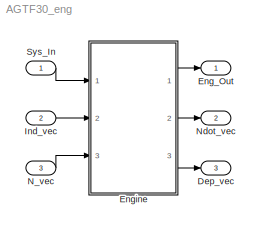
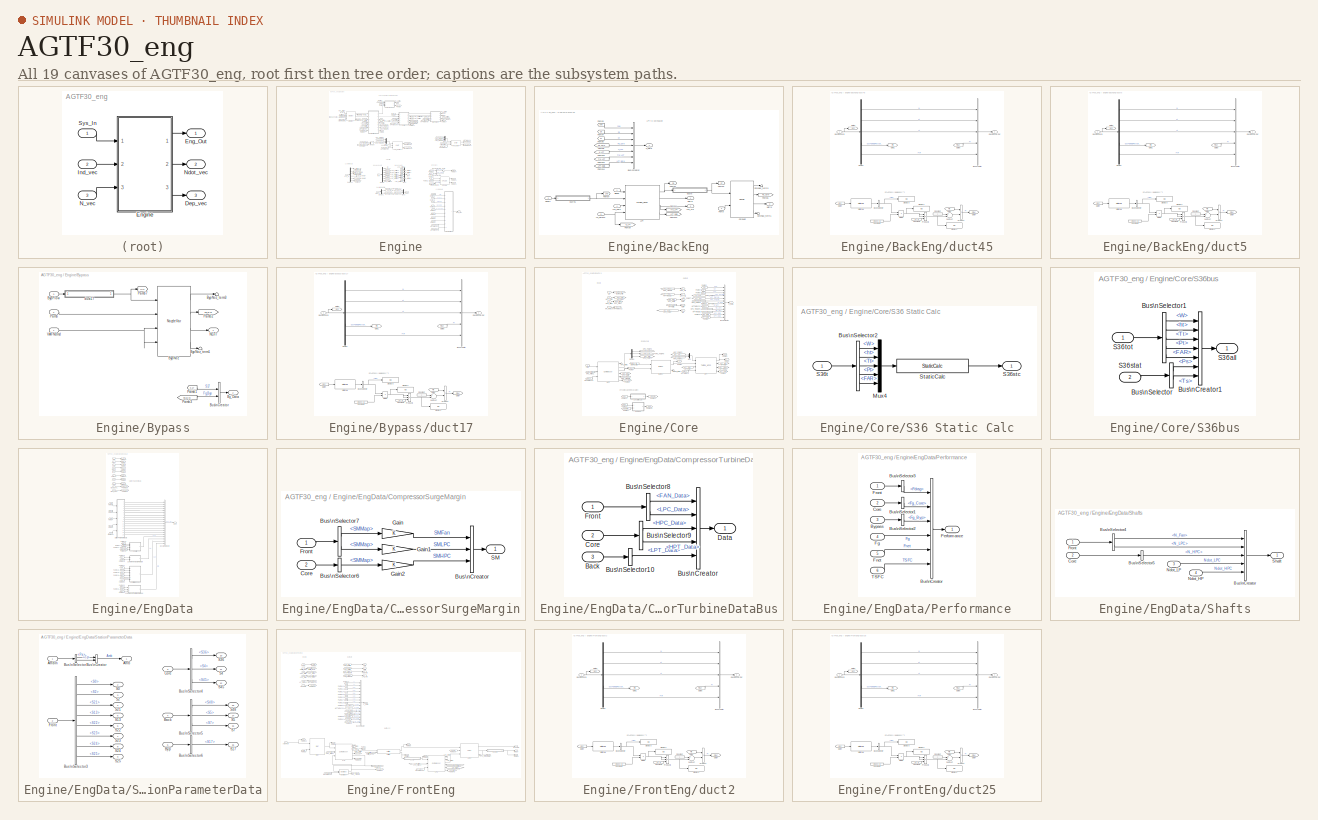
[diagram: thumbnail index - all 19 canvases of the model, root first then tree order]
MODEL AGTF30_eng
KIND model
WORKSPACE source: external: MAT-File  (data not in archive)
BLOCK [Outport] Dep_vec
  IconDisplay = Port number
  Port = 3
  SID = 548
BLOCK [Outport] Eng_Out
  IconDisplay = Port number
  OutDataTypeStr = Bus: Eng_Bus
  SID = 550
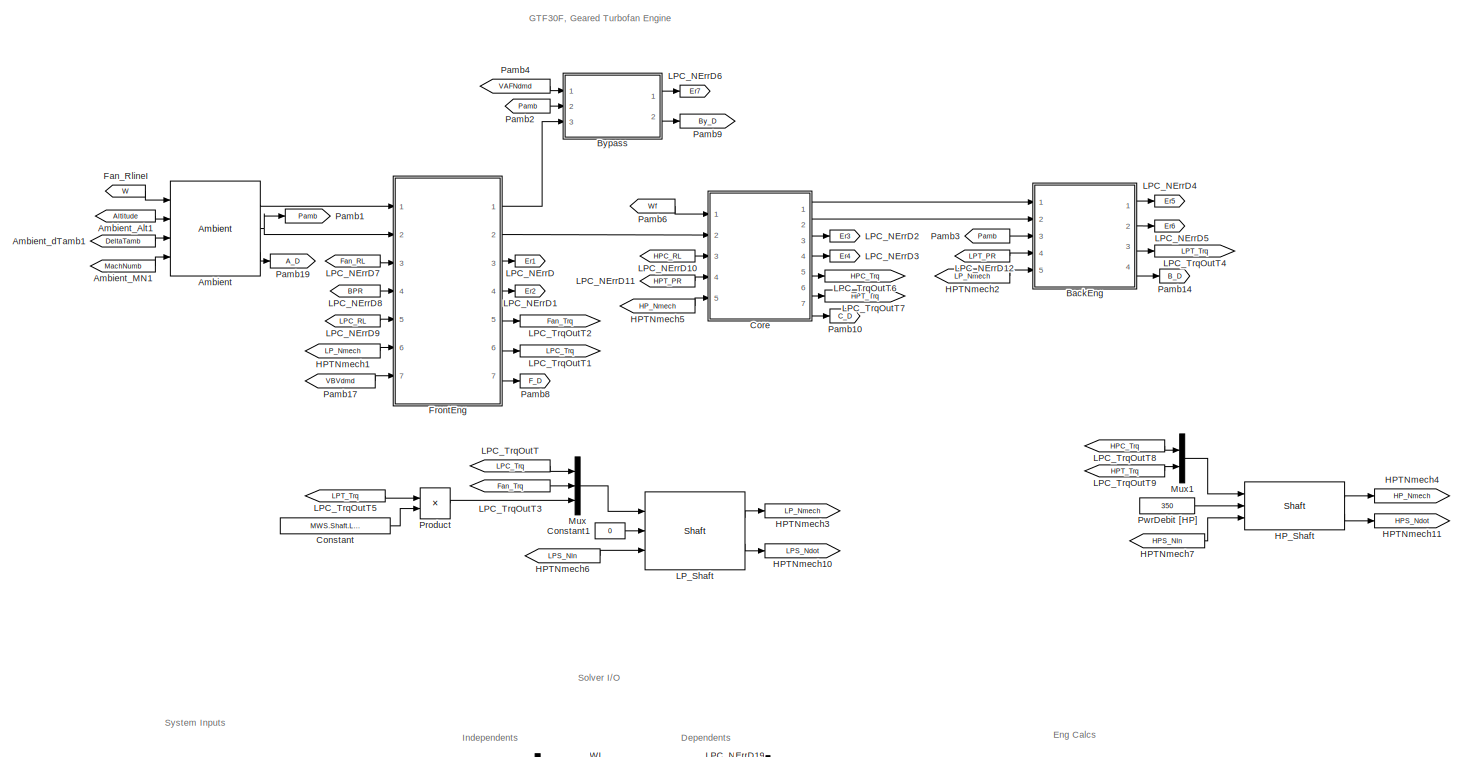
[diagram: Engine - part 1/2, full width, top band]
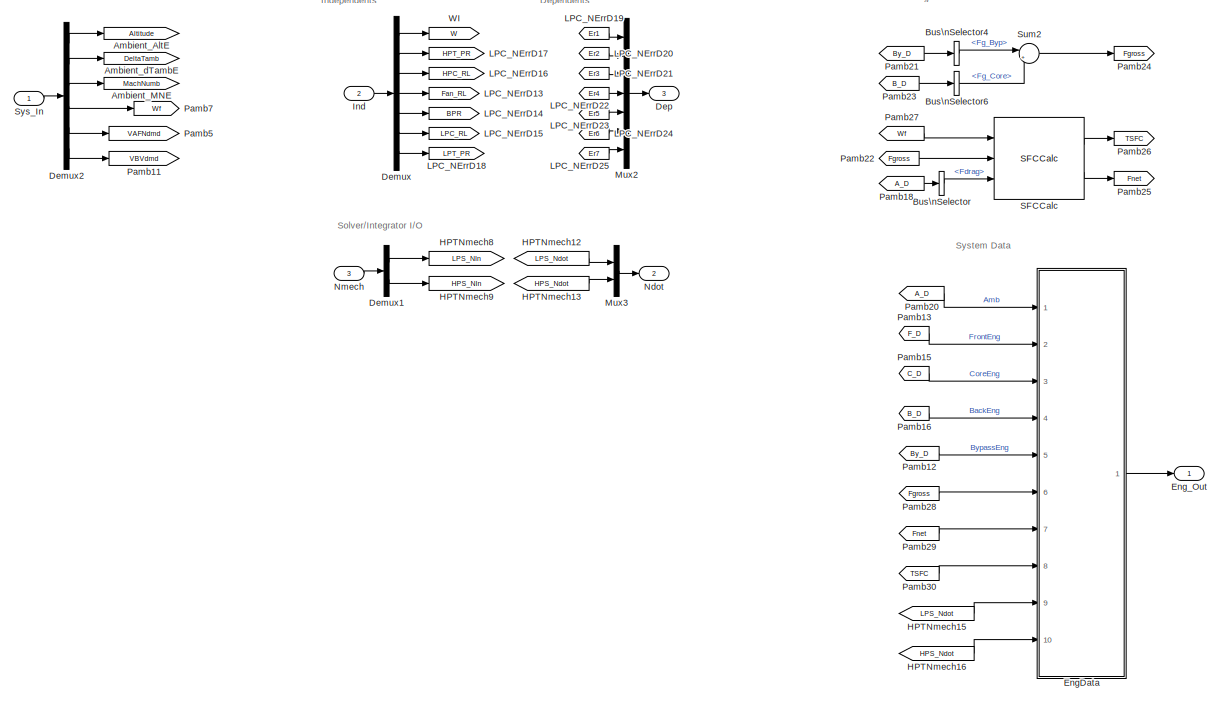
[diagram: Engine - part 2/2, full width, bottom band]
BLOCK [SubSystem] Engine
  Ports = [3, 3]
  RequestExecContextInheritance = off
  SID = 536
BLOCK [Reference] Engine/Ambient  REF=Lib_Turbo_Ambient_TMATS/Ambient
  AFARc_M = 0
  Ports = [4, 3]
  SID = 1
  SourceBlock = Lib_Turbo_Ambient_TMATS/Ambient
  SourceType = T-MATS: Ambient Library Block
  T_A_PsVec_M = [17.554 14.696 12.228 10.108 8.297 6.759 5.461 4.373 3.468 2.73 2.149 1.692 1.049 0.651 0.406]
  T_A_RtArray_M = [0.0686;    0.0686;    0.0686;    0.0686;    0.0686;    0.0686;    0.0686]
  T_A_TsVec_M = [536.51 518.67 500.84 483.03 465.22 447.41 429.62 411.84 394.06 389.97 389.97 389.97 389.97 392.25 397.69]
  T_A_gammaArray_M = [ 1.4 1.4 1.4 1.4 1.4 1.4 1.4; 1.4 1.4 1.4 1.4 1.4 1.4 1.4]
  X_A_AltVec_M = 5000*[-1 0 1 2 3 4 5 6 7 8 9 10 12 14 16]
  X_A_FARVec_M = [0; 0.0050; 0.0100; 0.0150; 0.0200; 0.0250; 0.0300]
  Y_A_TVec_M = [300 10000]
BLOCK [From] Engine/Ambient_Alt1
  GotoTag = Altitude
  SID = 21
BLOCK [Goto] Engine/Ambient_AltE
  GotoTag = Altitude
  SID = 25
BLOCK [From] Engine/Ambient_MN1
  GotoTag = MachNumb
  SID = 23
BLOCK [Goto] Engine/Ambient_MNE
  GotoTag = MachNumb
  SID = 27
BLOCK [From] Engine/Ambient_dTamb1
  GotoTag = DeltaTamb
  SID = 22
BLOCK [Goto] Engine/Ambient_dTambE
  GotoTag = DeltaTamb
  SID = 26
BLOCK [SubSystem] Engine/BackEng
  Ports = [5, 4]
  RequestExecContextInheritance = off
  SID = 181
BLOCK [Inport] Engine/BackEng/BldFlw
  IconDisplay = Port number
  SID = 182
BLOCK [BusCreator] Engine/BackEng/Bus\nCreator
  DisplayOption = bar
  Inputs = 7
  Ports = [7, 1]
  SID = 362
BLOCK [Outport] Engine/BackEng/C_Data
  IconDisplay = Port number
  Port = 4
  SID = 363
BLOCK [Reference] Engine/BackEng/CoreNoz  REF=Lib_Turbo_Nozzle_TMATS/Nozzle
  CfgEn_M = on
  FVar_M = strcat('iDes_',stripchar_TMATS(gcb),'.bin')
  N_EArea_M = 110.7
  N_FL_M = 0.00
  N_TArea_M = MWS.NozCor.Ath
  Ports = [2, 4]
  SID = 17
  SWType_M = Convergent
  SourceBlock = Lib_Turbo_Nozzle_TMATS/Nozzle
  SourceType = T-MATS: Nozzle Library Block
  T_N_CdThArray_M = [1 1]
  T_N_CfgArray_M = [1 1]*MWS.NozCor.Cfg
  T_N_CvArray_M = [1 1]
  T_N_MAP_gammaArray_M = [ 1.4 1.4 1.4 1.4 1.4 1.4 1.4; 1.4 1.4 1.4 1.4 1.4 1.4 1.4]
  T_N_RtArray_M = [0.0686;    0.0686;    0.0686;    0.0686;    0.0686;    0.0686;    0.0686]
  T_N_TGArray_M = [1 1]
  WDes_M = MWS.NozCor.WDes
  X_N_FARVec_M = [0; 0.0050; 0.0100; 0.0150; 0.0200; 0.0250; 0.0300]
  X_N_PEQPaVec_M = [0 10000]
  X_N_TtVec2_M = [300 10000]
  Y_N_TtVec_M = [300 10000]
  iDesign_M = 2
BLOCK [Terminator] Engine/BackEng/CoreNoz_term1
  SID = 166
BLOCK [Terminator] Engine/BackEng/CoreNoz_term3
  SID = 169
BLOCK [Inport] Engine/BackEng/FlowIn
  IconDisplay = Port number
  Port = 2
  SID = 183
BLOCK [Reference] Engine/BackEng/LPT  REF=Lib_Turbo_TurbineNPSS_TMATS/Turbine_NPSS
  BlkNm_M = double(gcb)
  CFlwEn_M = on
  ConfigNPSS_M = 1
  EffDes_M = MWS.LPT.EffDes
  FVar_M = strcat('iDes_',stripchar_TMATS(gcb),'.bin')
  HP_M = off
  NDes_M = MWS.LPT.NDes
  NcDes_M = MWS.LPT.NcMapDes
  PRDes_M = MWS.LPT.PRMapDes
  Ports = [4, 4]
  SID = 14
  Scale_M = none
  SourceBlock = Lib_Turbo_TurbineNPSS_TMATS/Turbine_NPSS
  SourceType = T-MATS: Turbine, NPSS Library Block
  T_CoolFlwPos_M = MWS.LPT.CWPos
  T_T_Map_EffArray_M = MWS.LPT.effArray
  T_T_Map_WcArray_M = MWS.LPT.WcArray
  X_T_Map_PRVec_M = MWS.LPT.PRVec
  Y_T_Map_NcVec_M = MWS.LPT.NcVec
  iDesign_M = 2
  s_T_Eff_M = MWS.LPT.s_Eff
  s_T_Nc_M = MWS.LPT.s_Nc
  s_T_PR_M = MWS.LPT.s_PR
  s_T_Wc_M = MWS.LPT.s_Wc
BLOCK [Inport] Engine/BackEng/LPT_PRIn
  IconDisplay = Port number
  Port = 4
  SID = 185
BLOCK [Outport] Engine/BackEng/LPT_Trq
  IconDisplay = Port number
  Port = 3
  SID = 190
BLOCK [Inport] Engine/BackEng/LP_Nmech
  IconDisplay = Port number
  Port = 5
  SID = 186
BLOCK [Outport] Engine/BackEng/NErr5
  IconDisplay = Port number
  SID = 188
BLOCK [Outport] Engine/BackEng/NErr6
  IconDisplay = Port number
  Port = 2
  SID = 189
BLOCK [Inport] Engine/BackEng/Pamb
  IconDisplay = Port number
  Port = 3
  SID = 184
BLOCK [Goto] Engine/BackEng/Pamb1
  GotoTag = S5
  SID = 313
BLOCK [From] Engine/BackEng/Pamb10
  GotoTag = N_LPT
  SID = 477
BLOCK [Goto] Engine/BackEng/Pamb11
  GotoTag = Trq_LPT
  SID = 478
BLOCK [From] Engine/BackEng/Pamb12
  GotoTag = Trq_LPT
  SID = 480
BLOCK [Goto] Engine/BackEng/Pamb13
  GotoTag = LPT_Data
  SID = 752
BLOCK [From] Engine/BackEng/Pamb14
  GotoTag = LPT_Data
  SID = 754
BLOCK [Goto] Engine/BackEng/Pamb2
  GotoTag = S7
  SID = 314
BLOCK [From] Engine/BackEng/Pamb3
  GotoTag = S48
  SID = 369
BLOCK [From] Engine/BackEng/Pamb4
  GotoTag = S5
  SID = 368
BLOCK [From] Engine/BackEng/Pamb5
  GotoTag = S7
  SID = 367
BLOCK [Goto] Engine/BackEng/Pamb6
  GotoTag = Fg_Core
  SID = 471
BLOCK [Goto] Engine/BackEng/Pamb7
  GotoTag = S48
  SID = 312
BLOCK [From] Engine/BackEng/Pamb8
  GotoTag = Fg_Core
  SID = 473
BLOCK [Goto] Engine/BackEng/Pamb9
  GotoTag = N_LPT
  SID = 475
BLOCK [SubSystem] Engine/BackEng/duct45
  Ports = [1, 1]
  RequestExecContextInheritance = off
  SID = 963
BLOCK [BusCreator] Engine/BackEng/duct45/Bus Creator
  DisplayOption = bar
  Inputs = 5
  Ports = [5, 1]
  SID = 966
BLOCK [BusSelector] Engine/BackEng/duct45/Bus\nSelector
  OutputSignals = MN
  Ports = [1, 1]
  SID = 965
BLOCK [Constant] Engine/BackEng/duct45/Constant
  SID = 967
BLOCK [Constant] Engine/BackEng/duct45/Constant1
  SID = 968
  Value = dP_M
BLOCK [Constant] Engine/BackEng/duct45/Constant2
  SID = 969
  Value = MNdes_M
BLOCK [Demux] Engine/BackEng/duct45/Demux
  DisplayOption = bar
  Outputs = 5
  Ports = [1, 5]
  SID = 970
BLOCK [Display] Engine/BackEng/duct45/Display1
  Decimation = 1
  Ports = [1]
  SID = 971
BLOCK [Display] Engine/BackEng/duct45/Display2
  Decimation = 1
  Ports = [1]
  SID = 972
BLOCK [Display] Engine/BackEng/duct45/Display3
  Decimation = 1
  Ports = [1]
  SID = 973
BLOCK [Product] Engine/BackEng/duct45/Divide
  InputSameDT = off
  Inputs = */
  OutDataTypeStr = Inherit: Inherit via internal rule
  Ports = [2, 1]
  RndMeth = Floor
  SID = 974
  SaturateOnIntegerOverflow = off
BLOCK [Inport] Engine/BackEng/duct45/GasPthCharIn
  IconDisplay = Port number
  SID = 964
BLOCK [Outport] Engine/BackEng/duct45/GasPthCharOut
  IconDisplay = Port number
  SID = 987
BLOCK [Goto] Engine/BackEng/duct45/Goto1
  GotoTag = PtIn
  SID = 976
BLOCK [Goto] Engine/BackEng/duct45/Goto3
  GotoTag = GPC
  SID = 978
BLOCK [From] Engine/BackEng/duct45/Goto4
  GotoTag = GPC
  SID = 979
BLOCK [From] Engine/BackEng/duct45/Goto6
  GotoTag = PtIn
  SID = 980
BLOCK [Goto] Engine/BackEng/duct45/Goto7
  GotoTag = PtOut
  SID = 981
BLOCK [From] Engine/BackEng/duct45/Goto8
  GotoTag = PtOut
  SID = 982
BLOCK [Product] Engine/BackEng/duct45/Product
  InputSameDT = off
  OutDataTypeStr = Inherit: Inherit via internal rule
  Ports = [2, 1]
  SID = 983
  SaturateOnIntegerOverflow = off
BLOCK [Product] Engine/BackEng/duct45/Product1
  InputSameDT = off
  Inputs = 3
  OutDataTypeStr = Inherit: Inherit via internal rule
  Ports = [3, 1]
  SID = 984
  SaturateOnIntegerOverflow = off
BLOCK [Reference] Engine/BackEng/duct45/StaticCalc  REF=Lib_Turbo_StaticCalc_TMATS/StaticCalc
  Ath_M = Ath_M
  MN_M = 0.45
  Ports = [1, 1]
  SID = 985
  ST_M = off
  SourceBlock = Lib_Turbo_StaticCalc_TMATS/StaticCalc
  SourceType = T-MATS: Static Calculation Library Block
  T_RtArray_M = [0.0686;    0.0686;    0.0686;    0.0686;    0.0686;    0.0686;    0.0686]
  T_gammaArray_M = [ 1.4 1.4 1.4 1.4 1.4 1.4 1.4; 1.4 1.4 1.4 1.4 1.4 1.4 1.4]
  X_FARVec_M = [0; 0.0050; 0.0100; 0.0150; 0.0200; 0.0250; 0.0300]
  Y_TtVec_M = [300 10000]
BLOCK [Sum] Engine/BackEng/duct45/Subtract
  InputSameDT = off
  Inputs = +-
  OutDataTypeStr = Inherit: Inherit via internal rule
  Ports = [2, 1]
  SID = 986
  SaturateOnIntegerOverflow = off
BLOCK [SubSystem] Engine/BackEng/duct5
  Ports = [1, 1]
  RequestExecContextInheritance = off
  SID = 989
BLOCK [BusCreator] Engine/BackEng/duct5/Bus Creator
  DisplayOption = bar
  Inputs = 5
  Ports = [5, 1]
  SID = 992
BLOCK [BusSelector] Engine/BackEng/duct5/Bus\nSelector
  OutputSignals = MN
  Ports = [1, 1]
  SID = 991
BLOCK [Constant] Engine/BackEng/duct5/Constant
  SID = 993
BLOCK [Constant] Engine/BackEng/duct5/Constant1
  SID = 994
  Value = dP_M
BLOCK [Constant] Engine/BackEng/duct5/Constant2
  SID = 995
  Value = MNdes_M
BLOCK [Demux] Engine/BackEng/duct5/Demux
  DisplayOption = bar
  Outputs = 5
  Ports = [1, 5]
  SID = 996
BLOCK [Display] Engine/BackEng/duct5/Display1
  Decimation = 1
  Ports = [1]
  SID = 997
BLOCK [Display] Engine/BackEng/duct5/Display2
  Decimation = 1
  Ports = [1]
  SID = 998
BLOCK [Display] Engine/BackEng/duct5/Display3
  Decimation = 1
  Ports = [1]
  SID = 999
BLOCK [Product] Engine/BackEng/duct5/Divide
  InputSameDT = off
  Inputs = */
  OutDataTypeStr = Inherit: Inherit via internal rule
  Ports = [2, 1]
  RndMeth = Floor
  SID = 1000
  SaturateOnIntegerOverflow = off
BLOCK [Inport] Engine/BackEng/duct5/GasPthCharIn
  IconDisplay = Port number
  SID = 990
BLOCK [Outport] Engine/BackEng/duct5/GasPthCharOut
  IconDisplay = Port number
  SID = 1013
BLOCK [Goto] Engine/BackEng/duct5/Goto1
  GotoTag = PtIn
  SID = 1002
BLOCK [Goto] Engine/BackEng/duct5/Goto3
  GotoTag = GPC
  SID = 1004
BLOCK [From] Engine/BackEng/duct5/Goto4
  GotoTag = GPC
  SID = 1005
BLOCK [From] Engine/BackEng/duct5/Goto6
  GotoTag = PtIn
  SID = 1006
BLOCK [Goto] Engine/BackEng/duct5/Goto7
  GotoTag = PtOut
  SID = 1007
BLOCK [From] Engine/BackEng/duct5/Goto8
  GotoTag = PtOut
  SID = 1008
BLOCK [Product] Engine/BackEng/duct5/Product
  InputSameDT = off
  OutDataTypeStr = Inherit: Inherit via internal rule
  Ports = [2, 1]
  SID = 1009
  SaturateOnIntegerOverflow = off
BLOCK [Product] Engine/BackEng/duct5/Product1
  InputSameDT = off
  Inputs = 3
  OutDataTypeStr = Inherit: Inherit via internal rule
  Ports = [3, 1]
  SID = 1010
  SaturateOnIntegerOverflow = off
BLOCK [Reference] Engine/BackEng/duct5/StaticCalc  REF=Lib_Turbo_StaticCalc_TMATS/StaticCalc
  Ath_M = Ath_M
  MN_M = 0.45
  Ports = [1, 1]
  SID = 1011
  ST_M = off
  SourceBlock = Lib_Turbo_StaticCalc_TMATS/StaticCalc
  SourceType = T-MATS: Static Calculation Library Block
  T_RtArray_M = [0.0686;    0.0686;    0.0686;    0.0686;    0.0686;    0.0686;    0.0686]
  T_gammaArray_M = [ 1.4 1.4 1.4 1.4 1.4 1.4 1.4; 1.4 1.4 1.4 1.4 1.4 1.4 1.4]
  X_FARVec_M = [0; 0.0050; 0.0100; 0.0150; 0.0200; 0.0250; 0.0300]
  Y_TtVec_M = [300 10000]
BLOCK [Sum] Engine/BackEng/duct5/Subtract
  InputSameDT = off
  Inputs = +-
  OutDataTypeStr = Inherit: Inherit via internal rule
  Ports = [2, 1]
  SID = 1012
  SaturateOnIntegerOverflow = off
BLOCK [BusSelector] Engine/Bus\nSelector
  OutputSignals = Fdrag
  Ports = [1, 1]
  SID = 1079
BLOCK [BusSelector] Engine/Bus\nSelector4
  OutputSignals = Fg_Byp
  Ports = [1, 1]
  SID = 1081
BLOCK [BusSelector] Engine/Bus\nSelector6
  OutputSignals = Fg_Core
  Ports = [1, 1]
  SID = 1084
BLOCK [SubSystem] Engine/Bypass
  Ports = [3, 2]
  RequestExecContextInheritance = off
  SID = 67
BLOCK [BusCreator] Engine/Bypass/Bus\nCreator
  DisplayOption = bar
  Inputs = 2
  Ports = [2, 1]
  SID = 422
BLOCK [Outport] Engine/Bypass/By_Data
  IconDisplay = Port number
  Port = 2
  SID = 318
BLOCK [Inport] Engine/Bypass/BypFlow
  IconDisplay = Port number
  Port = 3
  SID = 68
BLOCK [Reference] Engine/Bypass/BypNoz  REF=Lib_Turbo_NozzleVar_TMATS/NozzleVar
  CfgEn_M = on
  FVar_M = strcat('iDes_',stripchar_TMATS(gcb),'.bin')
  N_EArea_M = 0
  N_FL_M = 0.00
  N_TArea_M = 0
  Ports = [4, 4]
  SID = 626
  SWType_M = 1
  SourceBlock = Lib_Turbo_NozzleVar_TMATS/NozzleVar
  SourceType = T-MATS: Nozzle,Var Library Block
  T_N_CdThArray_M = [1 1]
  T_N_CfgArray_M = [1 1]* MWS.NozByp.Cfg
  T_N_CvArray_M = [1 1]
  T_N_MAP_gammaArray_M = [ 1.4 1.4 1.4 1.4 1.4 1.4 1.4; 1.4 1.4 1.4 1.4 1.4 1.4 1.4]
  T_N_RtArray_M = [0.0686;    0.0686;    0.0686;    0.0686;    0.0686;    0.0686;    0.0686]
  T_N_TGArray_M = [1 1]
  WDes_M = MWS.NozByp.WDes
  X_N_FARVec_M = [0; 0.0050; 0.0100; 0.0150; 0.0200; 0.0250; 0.0300]
  X_N_PEQPaVec_M = [0 10000]
  X_N_TtVec2_M = [300 10000]
  Y_N_TtVec_M = [300 10000]
  iDesign_M = 2
BLOCK [Terminator] Engine/Bypass/BypNoz_term1
  SID = 59
BLOCK [Terminator] Engine/Bypass/BypNoz_term3
  SID = 62
BLOCK [Outport] Engine/Bypass/NErr7
  IconDisplay = Port number
  SID = 70
BLOCK [Inport] Engine/Bypass/Pamb
  IconDisplay = Port number
  Port = 2
  SID = 69
BLOCK [From] Engine/Bypass/Pamb1
  GotoTag = S17
  SID = 317
BLOCK [Goto] Engine/Bypass/Pamb2
  GotoTag = Fg_Byp
  SID = 468
BLOCK [From] Engine/Bypass/Pamb3
  GotoTag = Fg_Byp
  SID = 470
BLOCK [Goto] Engine/Bypass/Pamb7
  GotoTag = S17
  SID = 315
BLOCK [Inport] Engine/Bypass/VAFNdmd
  IconDisplay = Port number
  SID = 627
BLOCK [SubSystem] Engine/Bypass/duct17
  Ports = [1, 1]
  RequestExecContextInheritance = off
  SID = 911
BLOCK [BusCreator] Engine/Bypass/duct17/Bus Creator
  DisplayOption = bar
  Inputs = 5
  Ports = [5, 1]
  SID = 914
BLOCK [BusSelector] Engine/Bypass/duct17/Bus\nSelector
  OutputSignals = MN
  Ports = [1, 1]
  SID = 913
BLOCK [Constant] Engine/Bypass/duct17/Constant
  SID = 915
BLOCK [Constant] Engine/Bypass/duct17/Constant1
  SID = 916
  Value = dP_M
BLOCK [Constant] Engine/Bypass/duct17/Constant2
  SID = 917
  Value = MNdes_M
BLOCK [Demux] Engine/Bypass/duct17/Demux
  DisplayOption = bar
  Outputs = 5
  Ports = [1, 5]
  SID = 918
BLOCK [Display] Engine/Bypass/duct17/Display1
  Decimation = 1
  Ports = [1]
  SID = 919
BLOCK [Display] Engine/Bypass/duct17/Display2
  Decimation = 1
  Ports = [1]
  SID = 920
BLOCK [Display] Engine/Bypass/duct17/Display3
  Decimation = 1
  Ports = [1]
  SID = 921
BLOCK [Product] Engine/Bypass/duct17/Divide
  InputSameDT = off
  Inputs = */
  OutDataTypeStr = Inherit: Inherit via internal rule
  Ports = [2, 1]
  RndMeth = Floor
  SID = 922
  SaturateOnIntegerOverflow = off
BLOCK [Inport] Engine/Bypass/duct17/GasPthCharIn
  IconDisplay = Port number
  SID = 912
BLOCK [Outport] Engine/Bypass/duct17/GasPthCharOut
  IconDisplay = Port number
  SID = 935
BLOCK [Goto] Engine/Bypass/duct17/Goto1
  GotoTag = PtIn
  SID = 924
BLOCK [Goto] Engine/Bypass/duct17/Goto3
  GotoTag = GPC
  SID = 926
BLOCK [From] Engine/Bypass/duct17/Goto4
  GotoTag = GPC
  SID = 927
BLOCK [From] Engine/Bypass/duct17/Goto6
  GotoTag = PtIn
  SID = 928
BLOCK [Goto] Engine/Bypass/duct17/Goto7
  GotoTag = PtOut
  SID = 929
BLOCK [From] Engine/Bypass/duct17/Goto8
  GotoTag = PtOut
  SID = 930
BLOCK [Product] Engine/Bypass/duct17/Product
  InputSameDT = off
  OutDataTypeStr = Inherit: Inherit via internal rule
  Ports = [2, 1]
  SID = 931
  SaturateOnIntegerOverflow = off
BLOCK [Product] Engine/Bypass/duct17/Product1
  InputSameDT = off
  Inputs = 3
  OutDataTypeStr = Inherit: Inherit via internal rule
  Ports = [3, 1]
  SID = 932
  SaturateOnIntegerOverflow = off
BLOCK [Reference] Engine/Bypass/duct17/StaticCalc  REF=Lib_Turbo_StaticCalc_TMATS/StaticCalc
  Ath_M = Ath_M
  MN_M = 0.45
  Ports = [1, 1]
  SID = 933
  ST_M = off
  SourceBlock = Lib_Turbo_StaticCalc_TMATS/StaticCalc
  SourceType = T-MATS: Static Calculation Library Block
  T_RtArray_M = [0.0686;    0.0686;    0.0686;    0.0686;    0.0686;    0.0686;    0.0686]
  T_gammaArray_M = [ 1.4 1.4 1.4 1.4 1.4 1.4 1.4; 1.4 1.4 1.4 1.4 1.4 1.4 1.4]
  X_FARVec_M = [0; 0.0050; 0.0100; 0.0150; 0.0200; 0.0250; 0.0300]
  Y_TtVec_M = [300 10000]
BLOCK [Sum] Engine/Bypass/duct17/Subtract
  InputSameDT = off
  Inputs = +-
  OutDataTypeStr = Inherit: Inherit via internal rule
  Ports = [2, 1]
  SID = 934
  SaturateOnIntegerOverflow = off
BLOCK [Constant] Engine/Constant
  SID = 1017
  Value = MWS.Shaft.LPS_Eff
BLOCK [Constant] Engine/Constant1
  SID = 1273
  Value = 0
BLOCK [SubSystem] Engine/Core
  Ports = [5, 7]
  RequestExecContextInheritance = off
  SID = 132
BLOCK [Outport] Engine/Core/Bld
  IconDisplay = Port number
  SID = 138
BLOCK [Reference] Engine/Core/Burner  REF=Lib_Turbo_Burner_TMATS/Burner
  Eff_M = MWS.Burn.Eff
  LHVEn_M = on
  LHV_M = MWS.Burn.LHV
  Ports = [2, 2]
  SID = 12
  SourceBlock = Lib_Turbo_Burner_TMATS/Burner
  SourceType = T-MATS: Burner Library Block
  dPnormBurner_M = MWS.Burn.dPqP_dmd
  hFuel_M = -1200
BLOCK [From] Engine/Core/Burner_Wf1
  GotoTag = Burner_Wf
  SID = 97
BLOCK [Goto] Engine/Core/Burner_WfC
  GotoTag = Burner_Wf
  SID = 98
BLOCK [Terminator] Engine/Core/Burner_term1
  SID = 96
BLOCK [BusCreator] Engine/Core/Bus\nCreator
  DisplayOption = bar
  Inputs = 12
  Ports = [12, 1]
  SID = 359
BLOCK [Outport] Engine/Core/C_Data
  IconDisplay = Port number
  Port = 7
  SID = 349
BLOCK [Demux] Engine/Core/Demux
  DisplayOption = bar
  Outputs = 3
  Ports = [1, 3]
  SID = 559
BLOCK [Inport] Engine/Core/FlwIn
  IconDisplay = Port number
  Port = 2
  SID = 133
BLOCK [Outport] Engine/Core/FlwOut
  IconDisplay = Port number
  Port = 2
  SID = 137
BLOCK [Reference] Engine/Core/HPC  REF=Lib_Turbo_Compressor_TMATS/Compressor
  BlkNm_M = double(gcb)
  CBLDEN_M = off
  C_BFPt_M = MWS.HPC.BFPt
  C_BFht_M = MWS.HPC.BFht
  C_CBD_M = 0
  C_CBFPt_M = 0.5
  C_CBFht_M = 0.5
  C_FBD_M = MWS.HPC.FBD
  DefSMEn_M = off
  EffDes_M = MWS.HPC.EffDes
  FBLDEN_M = on
  FVar_M = strcat('iDes_',stripchar_TMATS(gcb),'.bin')
  HP_M = off
  NcDes_M = MWS.HPC.NcDesMap
  PRDes_M = MWS.HPC.PRDes
  Ports = [3, 6]
  RlineDes_M = MWS.HPC.RlineDesMap
  SID = 9
  SL_M = off
  SMNEn_M = off
  SRline_M = 1
  Scale_M = none
  SourceBlock = Lib_Turbo_Compressor_TMATS/Compressor
  SourceType = T-MATS: Compressor Library Block
  T_C_Map_EffArray_M = MWS.HPC.EffArray
  T_C_Map_PRArray_M = MWS.HPC.PRArray
  T_C_Map_PRSurgeVec_M = MWS.HPC.SM_PRVec
  T_C_Map_WcArray_M = MWS.HPC.WcArray
  X_C_Map_WcSurgeVec_M = MWS.HPC.SM_WcVec
  X_C_RlineVec_M = MWS.HPC.RVec
  Y_C_Map_NcVec_M = MWS.HPC.NcVec
  Z_C_AlphaVec_M = 1
  iDesign_M = 2
  s_C_Eff_M = MWS.HPC.s_Eff
  s_C_Nc_M = MWS.HPC.s_Nc
  s_C_PR_M = MWS.HPC.s_PR
  s_C_Wc_M = MWS.HPC.s_Wc
BLOCK [From] Engine/Core/HPC_FbldF
  GotoTag = LPT_exit_bld
  SID = 108
BLOCK [From] Engine/Core/HPC_FbldF1
  GotoTag = HPT_inlet_bld
  SID = 564
BLOCK [From] Engine/Core/HPC_FbldF2
  GotoTag = HPT_exit_bld
  SID = 563
BLOCK [Goto] Engine/Core/HPC_FbldF3
  GotoTag = LPT_exit_bld
  SID = 307
BLOCK [Goto] Engine/Core/HPC_FbldF4
  GotoTag = HPT_inlet_bld
  SID = 308
BLOCK [Goto] Engine/Core/HPC_FbldF5
  GotoTag = HPT_exit_bld
  SID = 309
BLOCK [From] Engine/Core/HPC_FbldF6
  GotoTag = LPT_exit_bld
  SID = 353
BLOCK [From] Engine/Core/HPC_FbldF7
  GotoTag = HPT_inlet_bld
  SID = 354
BLOCK [From] Engine/Core/HPC_FbldF8
  GotoTag = HPT_exit_bld
  SID = 355
BLOCK [Goto] Engine/Core/HPC_NErr1
  GotoTag = HPC_NErr
  SID = 102
BLOCK [From] Engine/Core/HPC_NErrD
  GotoTag = HPC_NErr
  SID = 107
BLOCK [Inport] Engine/Core/HPC_Rline
  IconDisplay = Port number
  Port = 3
  SID = 135
BLOCK [From] Engine/Core/HPC_Rline1
  GotoTag = HPC_Rline
  SID = 105
BLOCK [Goto] Engine/Core/HPC_RlineI
  GotoTag = HPC_Rline
  SID = 109
BLOCK [Outport] Engine/Core/HPC_Trq
  IconDisplay = Port number
  Port = 5
  SID = 140
BLOCK [Goto] Engine/Core/HPC_TrqOut1
  GotoTag = HPC_TrqOut
  SID = 101
BLOCK [From] Engine/Core/HPC_TrqOutT
  GotoTag = HPC_TrqOut
  SID = 106
BLOCK [From] Engine/Core/HPC_TrqOutT1
  GotoTag = HPC_TrqOut
  SID = 483
BLOCK [Terminator] Engine/Core/HPC_term2
  SID = 104
BLOCK [Reference] Engine/Core/HPT  REF=Lib_Turbo_TurbineNPSS_TMATS/Turbine_NPSS
  BlkNm_M = double(gcb)
  CFlwEn_M = on
  ConfigNPSS_M = 1
  EffDes_M = MWS.HPT.EffDes
  FVar_M = strcat('iDes_',stripchar_TMATS(gcb),'.bin')
  HP_M = off
  NDes_M = MWS.HPT.NDes
  NcDes_M = MWS.HPT.NcMapDes
  PRDes_M = MWS.HPT.PRMapDes
  Ports = [4, 4]
  SID = 13
  Scale_M = none
  SourceBlock = Lib_Turbo_TurbineNPSS_TMATS/Turbine_NPSS
  SourceType = T-MATS: Turbine, NPSS Library Block
  T_CoolFlwPos_M = MWS.HPT.CWPos
  T_T_Map_EffArray_M = MWS.HPT.effArray
  T_T_Map_WcArray_M = MWS.HPT.WcArray
  X_T_Map_PRVec_M = MWS.HPT.PRVec
  Y_T_Map_NcVec_M = MWS.HPT.NcVec
  iDesign_M = 2
  s_T_Eff_M = MWS.HPT.s_Eff
  s_T_Nc_M = MWS.HPT.s_Nc
  s_T_PR_M = MWS.HPT.s_PR
  s_T_Wc_M = MWS.HPT.s_Wc
BLOCK [Goto] Engine/Core/HPTNErr
  GotoTag = HPT_NErr
  SID = 123
BLOCK [From] Engine/Core/HPTNErr1
  GotoTag = HPT_NErr
  SID = 152
BLOCK [From] Engine/Core/HPTNmech
  GotoTag = Nmech
  SID = 121
BLOCK [From] Engine/Core/HPTNmech1
  GotoTag = Nmech
  SID = 129
BLOCK [Goto] Engine/Core/HPTNmech2
  GotoTag = Nmech
  SID = 131
BLOCK [From] Engine/Core/HPTNmech3
  GotoTag = Nmech
  SID = 486
BLOCK [From] Engine/Core/HPTNmech4
  GotoTag = Nmech
  SID = 487
BLOCK [From] Engine/Core/HPTPRIn
  GotoTag = HPT_PRIn
  SID = 120
BLOCK [Goto] Engine/Core/HPTPRIn1
  GotoTag = HPT_PRIn
  SID = 156
BLOCK [Goto] Engine/Core/HPTTrqOut
  GotoTag = HPT_TrqOut
  SID = 124
BLOCK [From] Engine/Core/HPTTrqOut1
  GotoTag = HPT_TrqOut
  SID = 142
BLOCK [From] Engine/Core/HPTTrqOut2
  GotoTag = HPT_TrqOut
  SID = 485
BLOCK [Inport] Engine/Core/HPT_PRIn
  IconDisplay = Port number
  Port = 4
  SID = 157
BLOCK [Outport] Engine/Core/HPT_Trq
  IconDisplay = Port number
  Port = 6
  SID = 143
BLOCK [Inport] Engine/Core/HP_Nmech
  IconDisplay = Port number
  Port = 5
  SID = 134
BLOCK [Mux] Engine/Core/Mux
  DisplayOption = bar
  Inputs = 2
  Ports = [2, 1]
  SID = 560
BLOCK [Outport] Engine/Core/NErr3
  IconDisplay = Port number
  Port = 3
  SID = 139
BLOCK [Outport] Engine/Core/NErr4
  IconDisplay = Port number
  Port = 4
  SID = 147
BLOCK [Goto] Engine/Core/Pamb1
  GotoTag = S4
  SID = 310
BLOCK [From] Engine/Core/Pamb10
  GotoTag = HPC_Data
  SID = 750
BLOCK [From] Engine/Core/Pamb11
  GotoTag = S36t
  SID = 1113
BLOCK [Goto] Engine/Core/Pamb12
  GotoTag = S36stat
  SID = 1114
BLOCK [From] Engine/Core/Pamb14
  GotoTag = S36t
  SID = 1183
BLOCK [Goto] Engine/Core/Pamb16
  GotoTag = S36
  SID = 1178
BLOCK [From] Engine/Core/Pamb17
  GotoTag = S36stat
  SID = 1180
BLOCK [Goto] Engine/Core/Pamb2
  GotoTag = S45
  SID = 311
BLOCK [From] Engine/Core/Pamb3
  GotoTag = S36
  SID = 1182
BLOCK [From] Engine/Core/Pamb4
  GotoTag = S4
  SID = 357
BLOCK [From] Engine/Core/Pamb5
  GotoTag = S45
  SID = 358
BLOCK [Goto] Engine/Core/Pamb6
  GotoTag = HPC_Data
  SID = 746
BLOCK [Goto] Engine/Core/Pamb7
  GotoTag = S36t
  SID = 300
BLOCK [From] Engine/Core/Pamb8
  GotoTag = HPT_Data
  SID = 751
BLOCK [Goto] Engine/Core/Pamb9
  GotoTag = HPT_Data
  SID = 748
BLOCK [SubSystem] Engine/Core/S36 Static Calc
  Ports = [1, 1]
  RequestExecContextInheritance = off
  SID = 1091
BLOCK [BusSelector] Engine/Core/S36 Static Calc/Bus\nSelector2
  OutputSignals = W,ht,Tt,Pt,FAR
  Ports = [1, 5]
  SID = 1065
BLOCK [Mux] Engine/Core/S36 Static Calc/Mux4
  DisplayOption = bar
  Inputs = 5
  Ports = [5, 1]
  SID = 1069
BLOCK [Outport] Engine/Core/S36 Static Calc/S36stc
  IconDisplay = Port number
  SID = 1093
BLOCK [Inport] Engine/Core/S36 Static Calc/S36t
  IconDisplay = Port number
  SID = 1092
BLOCK [Reference] Engine/Core/S36 Static Calc/StaticCalc  REF=Lib_Turbo_StaticCalc_TMATS/StaticCalc
  Ath_M = MWS.HPC.Ath
  MN_M = 0.3
  Ports = [1, 1]
  SID = 1070
  ST_M = off
  SourceBlock = Lib_Turbo_StaticCalc_TMATS/StaticCalc
  SourceType = T-MATS: Static Calculation Library Block
  T_RtArray_M = [0.0686;    0.0686;    0.0686;    0.0686;    0.0686;    0.0686;    0.0686]
  T_gammaArray_M = [ 1.4 1.4 1.4 1.4 1.4 1.4 1.4; 1.4 1.4 1.4 1.4 1.4 1.4 1.4]
  X_FARVec_M = [0; 0.0050; 0.0100; 0.0150; 0.0200; 0.0250; 0.0300]
  Y_TtVec_M = [300 10000]
BLOCK [SubSystem] Engine/Core/S36bus
  Ports = [2, 1]
  RequestExecContextInheritance = off
  SID = 1174
BLOCK [BusCreator] Engine/Core/S36bus/Bus\nCreator1
  DisplayOption = bar
  Inputs = 7
  Ports = [7, 1]
  SID = 1163
BLOCK [BusSelector] Engine/Core/S36bus/Bus\nSelector
  OutputSignals = Ps,Ts
  Ports = [1, 2]
  SID = 1170
BLOCK [BusSelector] Engine/Core/S36bus/Bus\nSelector1
  OutputSignals = W,ht,Tt,Pt,FAR
  Ports = [1, 5]
  SID = 1171
BLOCK [Outport] Engine/Core/S36bus/S36all
  IconDisplay = Port number
  SID = 1177
BLOCK [Inport] Engine/Core/S36bus/S36stat
  IconDisplay = Port number
  Port = 2
  SID = 1176
BLOCK [Inport] Engine/Core/S36bus/S36tot
  IconDisplay = Port number
  SID = 1175
BLOCK [Inport] Engine/Core/Wf
  IconDisplay = Port number
  SID = 136
BLOCK [Demux] Engine/Demux
  DisplayOption = bar
  Outputs = 7
  Ports = [1, 7]
  SID = 530
BLOCK [Demux] Engine/Demux1
  DisplayOption = bar
  Outputs = 2
  Ports = [1, 2]
  SID = 534
BLOCK [Demux] Engine/Demux2
  DisplayOption = bar
  Outputs = 6
  Ports = [1, 6]
  SID = 535
BLOCK [Outport] Engine/Dep
  IconDisplay = Port number
  Port = 3
  SID = 541
BLOCK [SubSystem] Engine/EngData
  Ports = [10, 1]
  RequestExecContextInheritance = off
  SID = 1095
BLOCK [Inport] Engine/EngData/Amb
  IconDisplay = Port number
  SID = 1096
BLOCK [Inport] Engine/EngData/Back
  IconDisplay = Port number
  Port = 4
  SID = 1099
BLOCK [BusCreator] Engine/EngData/BusCreatorHere
  DisplayOption = bar
  Inputs = 20
  Ports = [20, 1]
  SID = 491
BLOCK [Inport] Engine/EngData/Byp
  IconDisplay = Port number
  Port = 5
  SID = 1100
BLOCK [SubSystem] Engine/EngData/CompressorSurgeMargin
  Ports = [2, 1]
  RequestExecContextInheritance = off
  SID = 1226
BLOCK [BusCreator] Engine/EngData/CompressorSurgeMargin/Bus\nCreator
  DisplayOption = bar
  Inputs = 3
  Ports = [3, 1]
  SID = 1225
BLOCK [BusSelector] Engine/EngData/CompressorSurgeMargin/Bus\nSelector6
  OutputSignals = HPC_Data.SMMap
  Ports = [1, 1]
  SID = 1197
BLOCK [BusSelector] Engine/EngData/CompressorSurgeMargin/Bus\nSelector7
  OutputSignals = FAN_Data.SMMap,LPC_Data.SMMap
  Ports = [1, 2]
  SID = 1199
BLOCK [Inport] Engine/EngData/CompressorSurgeMargin/Core
  IconDisplay = Port number
  Port = 2
  SID = 1228
BLOCK [Inport] Engine/EngData/CompressorSurgeMargin/Front
  IconDisplay = Port number
  SID = 1227
BLOCK [Gain] Engine/EngData/CompressorSurgeMargin/Gain
  OutDataTypeStr = Inherit: Inherit via internal rule
  ParamDataTypeStr = Inherit: Inherit via internal rule
  SID = 1222
  SaturateOnIntegerOverflow = off
BLOCK [Gain] Engine/EngData/CompressorSurgeMargin/Gain1
  OutDataTypeStr = Inherit: Inherit via internal rule
  ParamDataTypeStr = Inherit: Inherit via internal rule
  SID = 1223
  SaturateOnIntegerOverflow = off
BLOCK [Gain] Engine/EngData/CompressorSurgeMargin/Gain2
  OutDataTypeStr = Inherit: Inherit via internal rule
  ParamDataTypeStr = Inherit: Inherit via internal rule
  SID = 1224
  SaturateOnIntegerOverflow = off
BLOCK [Outport] Engine/EngData/CompressorSurgeMargin/SM
  IconDisplay = Port number
  SID = 1229
BLOCK [SubSystem] Engine/EngData/CompressorTurbineDataBus
  Ports = [3, 1]
  RequestExecContextInheritance = off
  SID = 1208
BLOCK [Inport] Engine/EngData/CompressorTurbineDataBus/Back
  IconDisplay = Port number
  Port = 3
  SID = 1211
BLOCK [BusCreator] Engine/EngData/CompressorTurbineDataBus/Bus\nCreator
  DisplayOption = bar
  Inputs = 5
  Ports = [5, 1]
  SID = 1207
BLOCK [BusSelector] Engine/EngData/CompressorTurbineDataBus/Bus\nSelector10
  OutputSignals = LPT_Data
  Ports = [1, 1]
  SID = 1206
BLOCK [BusSelector] Engine/EngData/CompressorTurbineDataBus/Bus\nSelector8
  OutputSignals = FAN_Data,LPC_Data
  Ports = [1, 2]
  SID = 1204
BLOCK [BusSelector] Engine/EngData/CompressorTurbineDataBus/Bus\nSelector9
  OutputSignals = HPC_Data,HPT_Data
  Ports = [1, 2]
  SID = 1205
BLOCK [Inport] Engine/EngData/CompressorTurbineDataBus/Core
  IconDisplay = Port number
  Port = 2
  SID = 1210
BLOCK [Outport] Engine/EngData/CompressorTurbineDataBus/Data
  IconDisplay = Port number
  SID = 1212
BLOCK [Inport] Engine/EngData/CompressorTurbineDataBus/Front
  IconDisplay = Port number
  SID = 1209
BLOCK [Inport] Engine/EngData/Core
  IconDisplay = Port number
  Port = 3
  SID = 1098
BLOCK [Outport] Engine/EngData/Eng
  IconDisplay = Port number
  SID = 1102
BLOCK [Inport] Engine/EngData/Fgross
  IconDisplay = Port number
  Port = 6
  SID = 1110
BLOCK [Inport] Engine/EngData/Fnet
  IconDisplay = Port number
  Port = 7
  SID = 1111
BLOCK [Inport] Engine/EngData/Front
  IconDisplay = Port number
  Port = 2
  SID = 1097
BLOCK [Inport] Engine/EngData/Ndot_HPC
  IconDisplay = Port number
  Port = 10
  SID = 1247
BLOCK [Inport] Engine/EngData/Ndot_LPC
  IconDisplay = Port number
  Port = 9
  SID = 1246
BLOCK [Goto] Engine/EngData/Pamb1
  GotoTag = Front
  SID = 1119
BLOCK [From] Engine/EngData/Pamb10
  GotoTag = Byp
  SID = 1133
BLOCK [From] Engine/EngData/Pamb11
  GotoTag = Amb
  SID = 1184
BLOCK [From] Engine/EngData/Pamb12
  GotoTag = Back
  SID = 1185
BLOCK [From] Engine/EngData/Pamb13
  GotoTag = Byp
  SID = 1186
BLOCK [From] Engine/EngData/Pamb14
  GotoTag = Fgross
  SID = 1189
BLOCK [From] Engine/EngData/Pamb15
  GotoTag = Fnet
  SID = 1190
BLOCK [From] Engine/EngData/Pamb16
  GotoTag = Front
  SID = 1193
BLOCK [From] Engine/EngData/Pamb17
  GotoTag = Core
  SID = 1195
BLOCK [From] Engine/EngData/Pamb18
  GotoTag = Core
  SID = 1198
BLOCK [From] Engine/EngData/Pamb19
  GotoTag = Front
  SID = 1200
BLOCK [Goto] Engine/EngData/Pamb2
  GotoTag = Core
  SID = 1120
BLOCK [From] Engine/EngData/Pamb20
  GotoTag = Front
  SID = 1201
BLOCK [From] Engine/EngData/Pamb21
  GotoTag = Core
  SID = 1202
BLOCK [From] Engine/EngData/Pamb22
  GotoTag = Back
  SID = 1203
BLOCK [Goto] Engine/EngData/Pamb23
  GotoTag = Ndot_LPC
  SID = 1248
BLOCK [Goto] Engine/EngData/Pamb24
  GotoTag = Fgross
  SID = 1117
BLOCK [Goto] Engine/EngData/Pamb25
  GotoTag = Amb
  SID = 1118
BLOCK [Goto] Engine/EngData/Pamb26
  GotoTag = Ndot_HPC
  SID = 1249
BLOCK [From] Engine/EngData/Pamb27
  GotoTag = Ndot_LPC
  SID = 1254
BLOCK [From] Engine/EngData/Pamb28
  GotoTag = Ndot_HPC
  SID = 1255
BLOCK [Goto] Engine/EngData/Pamb29
  GotoTag = TSFC
  SID = 1269
BLOCK [Goto] Engine/EngData/Pamb3
  GotoTag = Back
  SID = 1121
BLOCK [From] Engine/EngData/Pamb30
  GotoTag = TSFC
  SID = 1272
BLOCK [Goto] Engine/EngData/Pamb4
  GotoTag = Byp
  SID = 1122
BLOCK [Goto] Engine/EngData/Pamb5
  GotoTag = Fnet
  SID = 1123
BLOCK [From] Engine/EngData/Pamb6
  GotoTag = Front
  SID = 1130
BLOCK [From] Engine/EngData/Pamb7
  GotoTag = Core
  SID = 1131
BLOCK [From] Engine/EngData/Pamb8
  GotoTag = Amb
  SID = 1129
BLOCK [From] Engine/EngData/Pamb9
  GotoTag = Back
  SID = 1132
BLOCK [SubSystem] Engine/EngData/Performance
  Ports = [6, 1]
  RequestExecContextInheritance = off
  SID = 1231
BLOCK [BusCreator] Engine/EngData/Performance/Bus\nCreator
  DisplayOption = bar
  Inputs = 6
  Ports = [6, 1]
  SID = 1230
BLOCK [BusSelector] Engine/EngData/Performance/Bus\nSelector1
  OutputSignals = Fg_Core
  Ports = [1, 1]
  SID = 1191
BLOCK [BusSelector] Engine/EngData/Performance/Bus\nSelector2
  OutputSignals = Fg_Byp
  Ports = [1, 1]
  SID = 1134
BLOCK [BusSelector] Engine/EngData/Performance/Bus\nSelector3
  OutputSignals = Fdrag
  Ports = [1, 1]
  SID = 1192
BLOCK [Inport] Engine/EngData/Performance/Bypass
  IconDisplay = Port number
  Port = 3
  SID = 1234
BLOCK [Inport] Engine/EngData/Performance/Core
  IconDisplay = Port number
  Port = 2
  SID = 1233
BLOCK [Inport] Engine/EngData/Performance/Fg
  IconDisplay = Port number
  Port = 4
  SID = 1235
BLOCK [Inport] Engine/EngData/Performance/Fnet
  IconDisplay = Port number
  Port = 5
  SID = 1236
BLOCK [Inport] Engine/EngData/Performance/Front
  IconDisplay = Port number
  SID = 1232
BLOCK [Outport] Engine/EngData/Performance/Performance
  IconDisplay = Port number
  SID = 1237
BLOCK [Inport] Engine/EngData/Performance/TSFC
  IconDisplay = Port number
  Port = 6
  SID = 1271
BLOCK [SubSystem] Engine/EngData/Shafts
  Ports = [4, 1]
  RequestExecContextInheritance = off
  SID = 1238
BLOCK [BusCreator] Engine/EngData/Shafts/Bus\nCreator
  DisplayOption = bar
  Inputs = 5
  Ports = [5, 1]
  SID = 1256
BLOCK [BusSelector] Engine/EngData/Shafts/Bus\nSelector4
  OutputSignals = N_Fan,N_LPC
  Ports = [1, 2]
  SID = 1194
BLOCK [BusSelector] Engine/EngData/Shafts/Bus\nSelector5
  OutputSignals = N_HPC
  Ports = [1, 1]
  SID = 1196
BLOCK [Inport] Engine/EngData/Shafts/Core
  IconDisplay = Port number
  Port = 2
  SID = 1240
BLOCK [Inport] Engine/EngData/Shafts/Front
  IconDisplay = Port number
  SID = 1239
BLOCK [Inport] Engine/EngData/Shafts/Ndot_HP
  IconDisplay = Port number
  Port = 4
  SID = 1253
BLOCK [Inport] Engine/EngData/Shafts/Ndot_LP
  IconDisplay = Port number
  Port = 3
  SID = 1252
BLOCK [Outport] Engine/EngData/Shafts/Shaft
  IconDisplay = Port number
  SID = 1257
BLOCK [SubSystem] Engine/EngData/StationParameterData
  Ports = [5, 16]
  RequestExecContextInheritance = off
  SID = 1141
BLOCK [Outport] Engine/EngData/StationParameterData/Amb
  IconDisplay = Port number
  SID = 1147
BLOCK [Inport] Engine/EngData/StationParameterData/AmbIn
  IconDisplay = Port number
  SID = 1142
BLOCK [Inport] Engine/EngData/StationParameterData/Back
  IconDisplay = Port number
  Port = 4
  SID = 1145
BLOCK [BusCreator] Engine/EngData/StationParameterData/Bus\nCreator
  DisplayOption = bar
  Inputs = 2
  Ports = [2, 1]
  SID = 1137
BLOCK [BusSelector] Engine/EngData/StationParameterData/Bus\nSelector1
  OutputSignals = Pa,Ts
  Ports = [1, 2]
  SID = 1094
BLOCK [BusSelector] Engine/EngData/StationParameterData/Bus\nSelector3
  OutputSignals = S0,S2,S21,S13,S22,S23,S24,S25
  Ports = [1, 8]
  SID = 1135
BLOCK [BusSelector] Engine/EngData/StationParameterData/Bus\nSelector4
  OutputSignals = S36,S4,S45
  Ports = [1, 3]
  SID = 1138
BLOCK [BusSelector] Engine/EngData/StationParameterData/Bus\nSelector5
  OutputSignals = S48,S5,S7
  Ports = [1, 3]
  SID = 1139
BLOCK [BusSelector] Engine/EngData/StationParameterData/Bus\nSelector6
  OutputSignals = S17
  Ports = [1, 1]
  SID = 1140
BLOCK [Inport] Engine/EngData/StationParameterData/Byp
  IconDisplay = Port number
  Port = 5
  SID = 1146
BLOCK [Inport] Engine/EngData/StationParameterData/Core
  IconDisplay = Port number
  Port = 3
  SID = 1144
BLOCK [Inport] Engine/EngData/StationParameterData/Front
  IconDisplay = Port number
  Port = 2
  SID = 1143
BLOCK [Outport] Engine/EngData/StationParameterData/S0
  IconDisplay = Port number
  Port = 2
  SID = 1148
BLOCK [Outport] Engine/EngData/StationParameterData/S13
  IconDisplay = Port number
  Port = 5
  SID = 1151
BLOCK [Outport] Engine/EngData/StationParameterData/S17
  IconDisplay = Port number
  Port = 16
  SID = 1162
BLOCK [Outport] Engine/EngData/StationParameterData/S2
  IconDisplay = Port number
  Port = 3
  SID = 1149
BLOCK [Outport] Engine/EngData/StationParameterData/S21
  IconDisplay = Port number
  Port = 4
  SID = 1150
BLOCK [Outport] Engine/EngData/StationParameterData/S22
  IconDisplay = Port number
  Port = 6
  SID = 1152
BLOCK [Outport] Engine/EngData/StationParameterData/S23
  IconDisplay = Port number
  Port = 7
  SID = 1153
BLOCK [Outport] Engine/EngData/StationParameterData/S24
  IconDisplay = Port number
  Port = 8
  SID = 1154
BLOCK [Outport] Engine/EngData/StationParameterData/S25
  IconDisplay = Port number
  Port = 9
  SID = 1155
BLOCK [Outport] Engine/EngData/StationParameterData/S36
  IconDisplay = Port number
  Port = 10
  SID = 1156
BLOCK [Outport] Engine/EngData/StationParameterData/S4
  IconDisplay = Port number
  Port = 11
  SID = 1157
BLOCK [Outport] Engine/EngData/StationParameterData/S45
  IconDisplay = Port number
  Port = 12
  SID = 1158
BLOCK [Outport] Engine/EngData/StationParameterData/S48
  IconDisplay = Port number
  Port = 13
  SID = 1159
BLOCK [Outport] Engine/EngData/StationParameterData/S5
  IconDisplay = Port number
  Port = 14
  SID = 1160
BLOCK [Outport] Engine/EngData/StationParameterData/S7
  IconDisplay = Port number
  Port = 15
  SID = 1161
BLOCK [Inport] Engine/EngData/TSFC
  IconDisplay = Port number
  Port = 8
  SID = 1268
BLOCK [Outport] Engine/Eng_Out
  IconDisplay = Port number
  SID = 540
BLOCK [From] Engine/Fan_RlineI
  GotoTag = W
  SID = 236
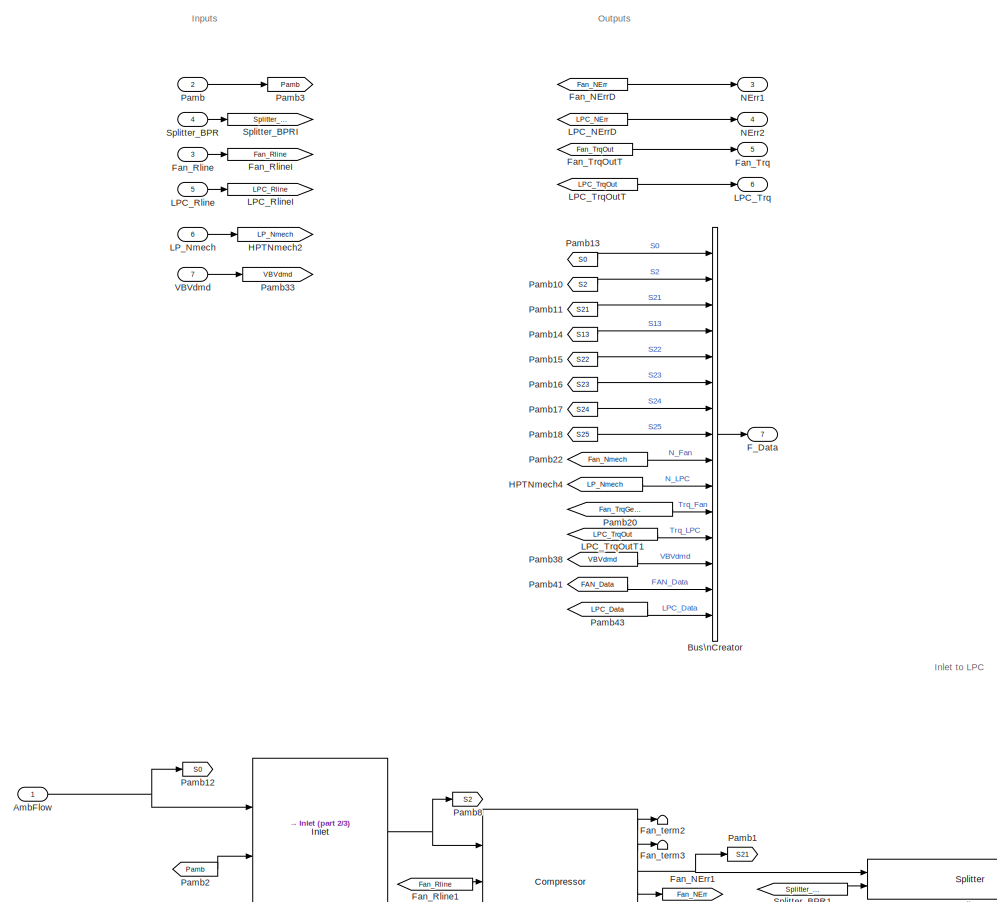
[diagram: Engine/FrontEng - part 1/3, left side, full height]
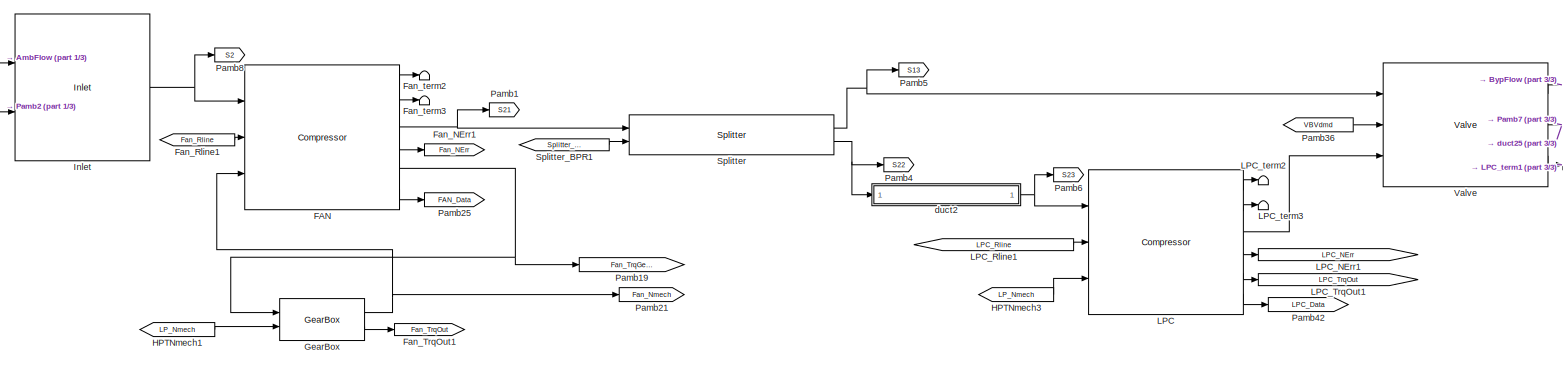
[diagram: Engine/FrontEng - part 2/3, bottom center region]
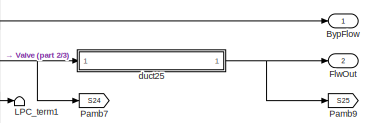
[diagram: Engine/FrontEng - part 3/3, bottom right region]
BLOCK [SubSystem] Engine/FrontEng
  Ports = [7, 7]
  RequestExecContextInheritance = off
  SID = 48
BLOCK [Inport] Engine/FrontEng/AmbFlow
  IconDisplay = Port number
  SID = 49
BLOCK [BusCreator] Engine/FrontEng/Bus\nCreator
  DisplayOption = bar
  Inputs = 15
  Ports = [15, 1]
  SID = 324
BLOCK [Outport] Engine/FrontEng/BypFlow
  IconDisplay = Port number
  SID = 54
BLOCK [Reference] Engine/FrontEng/FAN  REF=Lib_Turbo_Compressor_TMATS/Compressor
  BlkNm_M = double(gcb)
  CBLDEN_M = off
  C_BFPt_M = 0.5
  C_BFht_M = 0.5
  C_CBD_M = 0
  C_CBFPt_M = 0.5
  C_CBFht_M = 0.5
  C_FBD_M = 0
  DefSMEn_M = off
  EffDes_M = MWS.FAN.EffDes
  FBLDEN_M = off
  FVar_M = strcat('iDes_',stripchar_TMATS(gcb),'.bin')
  HP_M = off
  NcDes_M = MWS.FAN.NcDesMap
  PRDes_M = MWS.FAN.PRDes
  Ports = [3, 6]
  RlineDes_M = MWS.FAN.RlineDesMap
  SID = 554
  SL_M = off
  SMNEn_M = off
  SRline_M = 1
  Scale_M = none
  SourceBlock = Lib_Turbo_Compressor_TMATS/Compressor
  SourceType = T-MATS: Compressor Library Block
  T_C_Map_EffArray_M = MWS.FAN.EffArray
  T_C_Map_PRArray_M = MWS.FAN.PRArray
  T_C_Map_PRSurgeVec_M = MWS.FAN.SM_PRVec
  T_C_Map_WcArray_M = MWS.FAN.WcArray
  X_C_Map_WcSurgeVec_M = MWS.FAN.SM_WcVec
  X_C_RlineVec_M = MWS.FAN.RVec
  Y_C_Map_NcVec_M = MWS.FAN.NcVec
  Z_C_AlphaVec_M = 1
  iDesign_M = 2
  s_C_Eff_M = MWS.FAN.s_Eff
  s_C_Nc_M = MWS.FAN.s_Nc
  s_C_PR_M = MWS.FAN.s_PR
  s_C_Wc_M = MWS.FAN.s_Wc
BLOCK [Outport] Engine/FrontEng/F_Data
  IconDisplay = Port number
  Port = 7
  SID = 320
BLOCK [Goto] Engine/FrontEng/Fan_NErr1
  GotoTag = Fan_NErr
  SID = 32
BLOCK [From] Engine/FrontEng/Fan_NErrD
  GotoTag = Fan_NErr
  SID = 37
BLOCK [Inport] Engine/FrontEng/Fan_Rline
  IconDisplay = Port number
  Port = 3
  SID = 53
BLOCK [From] Engine/FrontEng/Fan_Rline1
  GotoTag = Fan_Rline
  SID = 35
BLOCK [Goto] Engine/FrontEng/Fan_RlineI
  GotoTag = Fan_Rline
  SID = 39
BLOCK [Outport] Engine/FrontEng/Fan_Trq
  IconDisplay = Port number
  Port = 5
  SID = 57
BLOCK [Goto] Engine/FrontEng/Fan_TrqOut1
  GotoTag = Fan_TrqOut
  SID = 575
BLOCK [From] Engine/FrontEng/Fan_TrqOutT
  GotoTag = Fan_TrqOut
  SID = 36
BLOCK [Terminator] Engine/FrontEng/Fan_term2
  SID = 34
BLOCK [Terminator] Engine/FrontEng/Fan_term3
  SID = 94
BLOCK [Outport] Engine/FrontEng/FlwOut
  IconDisplay = Port number
  Port = 2
  SID = 90
BLOCK [Reference] Engine/FrontEng/GearBox  REF=Lib_Turbo_GearBox_TMATS/GearBox
  Eff_M = MWS.GearBox.Eff
  Ports = [2, 2]
  R_M = MWS.GearBox.GearRatio
  SID = 574
  SourceBlock = Lib_Turbo_GearBox_TMATS/GearBox
  SourceType = T-MATS: Gear Box Library Block
BLOCK [From] Engine/FrontEng/HPTNmech1
  GotoTag = LP_Nmech
  SID = 576
BLOCK [Goto] Engine/FrontEng/HPTNmech2
  GotoTag = LP_Nmech
  SID = 193
BLOCK [From] Engine/FrontEng/HPTNmech3
  GotoTag = LP_Nmech
  SID = 197
BLOCK [From] Engine/FrontEng/HPTNmech4
  GotoTag = LP_Nmech
  SID = 488
BLOCK [Reference] Engine/FrontEng/Inlet  REF=Lib_Turbo_Inlet_TMATS/Inlet
  Ports = [2, 1]
  SID = 2
  SourceBlock = Lib_Turbo_Inlet_TMATS/Inlet
  SourceType = T-MATS: Inlet Library Block
  T_eRamtbl_M = MWS.Inlet.eRamTBL
  X_eRamVec_M = MWS.Inlet.eRamVec
  eRambase_M = MWS.Inlet.eRam
BLOCK [Reference] Engine/FrontEng/LPC  REF=Lib_Turbo_Compressor_TMATS/Compressor
  BlkNm_M = double(gcb)
  CBLDEN_M = off
  C_BFPt_M = 0.5
  C_BFht_M = 0.5
  C_CBD_M = 0
  C_CBFPt_M = 0.5
  C_CBFht_M = 0.5
  C_FBD_M = 0
  DefSMEn_M = off
  EffDes_M = MWS.LPC.EffDes
  FBLDEN_M = off
  FVar_M = strcat('iDes_',stripchar_TMATS(gcb),'.bin')
  HP_M = off
  NcDes_M = MWS.LPC.NcDesMap
  PRDes_M = MWS.LPC.PRDes
  Ports = [3, 6]
  RlineDes_M = MWS.LPC.RlineDesMap
  SID = 555
  SL_M = on
  SMNEn_M = off
  SRline_M = 1
  Scale_M = none
  SourceBlock = Lib_Turbo_Compressor_TMATS/Compressor
  SourceType = T-MATS: Compressor Library Block
  T_C_Map_EffArray_M = MWS.LPC.EffArray
  T_C_Map_PRArray_M = MWS.LPC.PRArray
  T_C_Map_PRSurgeVec_M = MWS.LPC.SM_PRVec
  T_C_Map_WcArray_M = MWS.LPC.WcArray
  X_C_Map_WcSurgeVec_M = MWS.LPC.SM_WcVec
  X_C_RlineVec_M = MWS.LPC.RVec
  Y_C_Map_NcVec_M = MWS.LPC.NcVec
  Z_C_AlphaVec_M = 1
  iDesign_M = 2
  s_C_Eff_M = MWS.LPC.s_Eff
  s_C_Nc_M = MWS.LPC.s_Nc
  s_C_PR_M = MWS.LPC.s_PR
  s_C_Wc_M = MWS.LPC.s_Wc
BLOCK [Goto] Engine/FrontEng/LPC_NErr1
  GotoTag = LPC_NErr
  SID = 77
BLOCK [From] Engine/FrontEng/LPC_NErrD
  GotoTag = LPC_NErr
  SID = 82
BLOCK [Inport] Engine/FrontEng/LPC_Rline
  IconDisplay = Port number
  Port = 5
  SID = 87
BLOCK [From] Engine/FrontEng/LPC_Rline1
  GotoTag = LPC_Rline
  SID = 80
BLOCK [Goto] Engine/FrontEng/LPC_RlineI
  GotoTag = LPC_Rline
  SID = 84
BLOCK [Outport] Engine/FrontEng/LPC_Trq
  IconDisplay = Port number
  Port = 6
  SID = 92
BLOCK [Goto] Engine/FrontEng/LPC_TrqOut1
  GotoTag = LPC_TrqOut
  SID = 76
BLOCK [From] Engine/FrontEng/LPC_TrqOutT
  GotoTag = LPC_TrqOut
  SID = 81
BLOCK [From] Engine/FrontEng/LPC_TrqOutT1
  GotoTag = LPC_TrqOut
  SID = 490
BLOCK [Terminator] Engine/FrontEng/LPC_term1
  SID = 1260
BLOCK [Terminator] Engine/FrontEng/LPC_term2
  SID = 79
BLOCK [Terminator] Engine/FrontEng/LPC_term3
  SID = 95
BLOCK [Inport] Engine/FrontEng/LP_Nmech
  IconDisplay = Port number
  Port = 6
  SID = 50
BLOCK [Outport] Engine/FrontEng/NErr1
  IconDisplay = Port number
  Port = 3
  SID = 58
BLOCK [Outport] Engine/FrontEng/NErr2
  IconDisplay = Port number
  Port = 4
  SID = 91
BLOCK [Inport] Engine/FrontEng/Pamb
  IconDisplay = Port number
  Port = 2
  SID = 51
BLOCK [Goto] Engine/FrontEng/Pamb1
  GotoTag = S21
  SID = 294
BLOCK [From] Engine/FrontEng/Pamb10
  GotoTag = S2
  SID = 338
BLOCK [From] Engine/FrontEng/Pamb11
  GotoTag = S21
  SID = 339
BLOCK [Goto] Engine/FrontEng/Pamb12
  GotoTag = S0
  SID = 292
BLOCK [From] Engine/FrontEng/Pamb13
  GotoTag = S0
  SID = 337
BLOCK [From] Engine/FrontEng/Pamb14
  GotoTag = S13
  SID = 340
BLOCK [From] Engine/FrontEng/Pamb15
  GotoTag = S22
  SID = 341
BLOCK [From] Engine/FrontEng/Pamb16
  GotoTag = S23
  SID = 342
BLOCK [From] Engine/FrontEng/Pamb17
  GotoTag = S24
  SID = 343
BLOCK [From] Engine/FrontEng/Pamb18
  GotoTag = S25
  SID = 344
BLOCK [Goto] Engine/FrontEng/Pamb19
  GotoTag = Fan_TrqGear
  SID = 577
BLOCK [From] Engine/FrontEng/Pamb2
  GotoTag = Pamb
  SID = 29
BLOCK [From] Engine/FrontEng/Pamb20
  GotoTag = Fan_TrqGear
  SID = 553
BLOCK [Goto] Engine/FrontEng/Pamb21
  GotoTag = Fan_Nmech
  SID = 578
BLOCK [From] Engine/FrontEng/Pamb22
  GotoTag = Fan_Nmech
  SID = 346
BLOCK [Goto] Engine/FrontEng/Pamb25
  GotoTag = FAN_Data
  SID = 642
BLOCK [Goto] Engine/FrontEng/Pamb3
  GotoTag = Pamb
  SID = 47
BLOCK [Goto] Engine/FrontEng/Pamb33
  GotoTag = VBVdmd
  SID = 706
BLOCK [From] Engine/FrontEng/Pamb36
  GotoTag = VBVdmd
  SID = 708
BLOCK [From] Engine/FrontEng/Pamb38
  GotoTag = VBVdmd
  SID = 722
BLOCK [Goto] Engine/FrontEng/Pamb4
  GotoTag = S22
  SID = 295
BLOCK [From] Engine/FrontEng/Pamb41
  GotoTag = FAN_Data
  SID = 741
BLOCK [Goto] Engine/FrontEng/Pamb42
  GotoTag = LPC_Data
  SID = 742
BLOCK [From] Engine/FrontEng/Pamb43
  GotoTag = LPC_Data
  SID = 744
BLOCK [Goto] Engine/FrontEng/Pamb5
  GotoTag = S13
  SID = 296
BLOCK [Goto] Engine/FrontEng/Pamb6
  GotoTag = S23
  SID = 297
BLOCK [Goto] Engine/FrontEng/Pamb7
  GotoTag = S24
  SID = 298
BLOCK [Goto] Engine/FrontEng/Pamb8
  GotoTag = S2
  SID = 293
BLOCK [Goto] Engine/FrontEng/Pamb9
  GotoTag = S25
  SID = 299
BLOCK [Reference] Engine/FrontEng/Splitter  REF=Lib_Turbo_Splitter_TMATS/Splitter
  Ports = [2, 2]
  SID = 4
  SourceBlock = Lib_Turbo_Splitter_TMATS/Splitter
  SourceType = T-MATS: Splitter Library Block
BLOCK [Inport] Engine/FrontEng/Splitter_BPR
  IconDisplay = Port number
  Port = 4
  SID = 52
BLOCK [From] Engine/FrontEng/Splitter_BPR1
  GotoTag = Splitter_BPR
  SID = 44
BLOCK [Goto] Engine/FrontEng/Splitter_BPRI
  GotoTag = Splitter_BPR
  SID = 45
BLOCK [Inport] Engine/FrontEng/VBVdmd
  IconDisplay = Port number
  Port = 7
  SID = 705
BLOCK [Reference] Engine/FrontEng/Valve  REF=Lib_Turbo_Valve_TMATS/Valve
  Ports = [3, 3]
  SID = 683
  SourceBlock = Lib_Turbo_Valve_TMATS/Valve
  SourceType = T-MATS: Valve Library Block
  T_VWArray_M = MWS.VBV.Flowe
  VAe_M = MWS.VBV.Ae
  VDZ_M = MWS.VBV.fullclosed
  VFO_M = MWS.VBV.fullopen
  X_VPRVec_M = MWS.VBV.PRVec
BLOCK [SubSystem] Engine/FrontEng/duct2
  Ports = [1, 1]
  RequestExecContextInheritance = off
  SID = 755
BLOCK [BusCreator] Engine/FrontEng/duct2/Bus Creator
  DisplayOption = bar
  Inputs = 5
  Ports = [5, 1]
  SID = 758
BLOCK [BusSelector] Engine/FrontEng/duct2/Bus\nSelector
  OutputSignals = MN
  Ports = [1, 1]
  SID = 757
BLOCK [Constant] Engine/FrontEng/duct2/Constant
  SID = 759
BLOCK [Constant] Engine/FrontEng/duct2/Constant1
  SID = 760
  Value = dP_M
BLOCK [Constant] Engine/FrontEng/duct2/Constant2
  SID = 761
  Value = MNdes_M
BLOCK [Demux] Engine/FrontEng/duct2/Demux
  DisplayOption = bar
  Outputs = 5
  Ports = [1, 5]
  SID = 762
BLOCK [Display] Engine/FrontEng/duct2/Display1
  Decimation = 1
  Ports = [1]
  SID = 763
BLOCK [Display] Engine/FrontEng/duct2/Display2
  Decimation = 1
  Ports = [1]
  SID = 764
BLOCK [Display] Engine/FrontEng/duct2/Display3
  Decimation = 1
  Ports = [1]
  SID = 765
BLOCK [Product] Engine/FrontEng/duct2/Divide
  InputSameDT = off
  Inputs = */
  OutDataTypeStr = Inherit: Inherit via internal rule
  Ports = [2, 1]
  RndMeth = Floor
  SID = 766
  SaturateOnIntegerOverflow = off
BLOCK [Inport] Engine/FrontEng/duct2/GasPthCharIn
  IconDisplay = Port number
  SID = 756
BLOCK [Outport] Engine/FrontEng/duct2/GasPthCharOut
  IconDisplay = Port number
  SID = 779
BLOCK [Goto] Engine/FrontEng/duct2/Goto1
  GotoTag = PtIn
  SID = 768
BLOCK [Goto] Engine/FrontEng/duct2/Goto3
  GotoTag = GPC
  SID = 770
BLOCK [From] Engine/FrontEng/duct2/Goto4
  GotoTag = GPC
  SID = 771
BLOCK [From] Engine/FrontEng/duct2/Goto6
  GotoTag = PtIn
  SID = 772
BLOCK [Goto] Engine/FrontEng/duct2/Goto7
  GotoTag = PtOut
  SID = 773
BLOCK [From] Engine/FrontEng/duct2/Goto8
  GotoTag = PtOut
  SID = 774
BLOCK [Product] Engine/FrontEng/duct2/Product
  InputSameDT = off
  OutDataTypeStr = Inherit: Inherit via internal rule
  Ports = [2, 1]
  SID = 775
  SaturateOnIntegerOverflow = off
BLOCK [Product] Engine/FrontEng/duct2/Product1
  InputSameDT = off
  Inputs = 3
  OutDataTypeStr = Inherit: Inherit via internal rule
  Ports = [3, 1]
  SID = 776
  SaturateOnIntegerOverflow = off
BLOCK [Reference] Engine/FrontEng/duct2/StaticCalc  REF=Lib_Turbo_StaticCalc_TMATS/StaticCalc
  Ath_M = Ath_M
  MN_M = 0.45
  Ports = [1, 1]
  SID = 777
  ST_M = off
  SourceBlock = Lib_Turbo_StaticCalc_TMATS/StaticCalc
  SourceType = T-MATS: Static Calculation Library Block
  T_RtArray_M = [0.0686;    0.0686;    0.0686;    0.0686;    0.0686;    0.0686;    0.0686]
  T_gammaArray_M = [ 1.4 1.4 1.4 1.4 1.4 1.4 1.4; 1.4 1.4 1.4 1.4 1.4 1.4 1.4]
  X_FARVec_M = [0; 0.0050; 0.0100; 0.0150; 0.0200; 0.0250; 0.0300]
  Y_TtVec_M = [300 10000]
BLOCK [Sum] Engine/FrontEng/duct2/Subtract
  InputSameDT = off
  Inputs = +-
  OutDataTypeStr = Inherit: Inherit via internal rule
  Ports = [2, 1]
  SID = 778
  SaturateOnIntegerOverflow = off
BLOCK [SubSystem] Engine/FrontEng/duct25
  Ports = [1, 1]
  RequestExecContextInheritance = off
  SID = 885
BLOCK [BusCreator] Engine/FrontEng/duct25/Bus Creator
  DisplayOption = bar
  Inputs = 5
  Ports = [5, 1]
  SID = 888
BLOCK [BusSelector] Engine/FrontEng/duct25/Bus\nSelector
  OutputSignals = MN
  Ports = [1, 1]
  SID = 887
BLOCK [Constant] Engine/FrontEng/duct25/Constant
  SID = 889
BLOCK [Constant] Engine/FrontEng/duct25/Constant1
  SID = 890
  Value = dP_M
BLOCK [Constant] Engine/FrontEng/duct25/Constant2
  SID = 891
  Value = MNdes_M
BLOCK [Demux] Engine/FrontEng/duct25/Demux
  DisplayOption = bar
  Outputs = 5
  Ports = [1, 5]
  SID = 892
BLOCK [Display] Engine/FrontEng/duct25/Display1
  Decimation = 1
  Ports = [1]
  SID = 893
BLOCK [Display] Engine/FrontEng/duct25/Display2
  Decimation = 1
  Ports = [1]
  SID = 894
BLOCK [Display] Engine/FrontEng/duct25/Display3
  Decimation = 1
  Ports = [1]
  SID = 895
BLOCK [Product] Engine/FrontEng/duct25/Divide
  InputSameDT = off
  Inputs = */
  OutDataTypeStr = Inherit: Inherit via internal rule
  Ports = [2, 1]
  RndMeth = Floor
  SID = 896
  SaturateOnIntegerOverflow = off
BLOCK [Inport] Engine/FrontEng/duct25/GasPthCharIn
  IconDisplay = Port number
  SID = 886
BLOCK [Outport] Engine/FrontEng/duct25/GasPthCharOut
  IconDisplay = Port number
  SID = 909
BLOCK [Goto] Engine/FrontEng/duct25/Goto1
  GotoTag = PtIn
  SID = 898
BLOCK [Goto] Engine/FrontEng/duct25/Goto3
  GotoTag = GPC
  SID = 900
BLOCK [From] Engine/FrontEng/duct25/Goto4
  GotoTag = GPC
  SID = 901
BLOCK [From] Engine/FrontEng/duct25/Goto6
  GotoTag = PtIn
  SID = 902
BLOCK [Goto] Engine/FrontEng/duct25/Goto7
  GotoTag = PtOut
  SID = 903
BLOCK [From] Engine/FrontEng/duct25/Goto8
  GotoTag = PtOut
  SID = 904
BLOCK [Product] Engine/FrontEng/duct25/Product
  InputSameDT = off
  OutDataTypeStr = Inherit: Inherit via internal rule
  Ports = [2, 1]
  SID = 905
  SaturateOnIntegerOverflow = off
BLOCK [Product] Engine/FrontEng/duct25/Product1
  InputSameDT = off
  Inputs = 3
  OutDataTypeStr = Inherit: Inherit via internal rule
  Ports = [3, 1]
  SID = 906
  SaturateOnIntegerOverflow = off
BLOCK [Reference] Engine/FrontEng/duct25/StaticCalc  REF=Lib_Turbo_StaticCalc_TMATS/StaticCalc
  Ath_M = Ath_M
  MN_M = 0.45
  Ports = [1, 1]
  SID = 907
  ST_M = off
  SourceBlock = Lib_Turbo_StaticCalc_TMATS/StaticCalc
  SourceType = T-MATS: Static Calculation Library Block
  T_RtArray_M = [0.0686;    0.0686;    0.0686;    0.0686;    0.0686;    0.0686;    0.0686]
  T_gammaArray_M = [ 1.4 1.4 1.4 1.4 1.4 1.4 1.4; 1.4 1.4 1.4 1.4 1.4 1.4 1.4]
  X_FARVec_M = [0; 0.0050; 0.0100; 0.0150; 0.0200; 0.0250; 0.0300]
  Y_TtVec_M = [300 10000]
BLOCK [Sum] Engine/FrontEng/duct25/Subtract
  InputSameDT = off
  Inputs = +-
  OutDataTypeStr = Inherit: Inherit via internal rule
  Ports = [2, 1]
  SID = 908
  SaturateOnIntegerOverflow = off
BLOCK [From] Engine/HPTNmech1
  GotoTag = LP_Nmech
  SID = 210
BLOCK [Goto] Engine/HPTNmech10
  GotoTag = LPS_Ndot
  SID = 287
BLOCK [Goto] Engine/HPTNmech11
  GotoTag = HPS_Ndot
  SID = 286
BLOCK [From] Engine/HPTNmech12
  GotoTag = LPS_Ndot
  SID = 289
BLOCK [From] Engine/HPTNmech13
  GotoTag = HPS_Ndot
  SID = 291
BLOCK [From] Engine/HPTNmech15
  GotoTag = LPS_Ndot
  SID = 1244
BLOCK [From] Engine/HPTNmech16
  GotoTag = HPS_Ndot
  SID = 1245
BLOCK [From] Engine/HPTNmech2
  GotoTag = LP_Nmech
  SID = 211
BLOCK [Goto] Engine/HPTNmech3
  GotoTag = LP_Nmech
  SID = 213
BLOCK [Goto] Engine/HPTNmech4
  GotoTag = HP_Nmech
  SID = 223
BLOCK [From] Engine/HPTNmech5
  GotoTag = HP_Nmech
  SID = 225
BLOCK [From] Engine/HPTNmech6
  GotoTag = LPS_NIn
  SID = 279
BLOCK [From] Engine/HPTNmech7
  GotoTag = HPS_NIn
  SID = 280
BLOCK [Goto] Engine/HPTNmech8
  GotoTag = LPS_NIn
  SID = 283
BLOCK [Goto] Engine/HPTNmech9
  GotoTag = HPS_NIn
  SID = 284
BLOCK [Reference] Engine/HP_Shaft  REF=Lib_Turbo_Shaft_TMATS/Shaft
  Ports = [3, 2]
  SID = 199
  Shaft_Inertia_M = MWS.Shaft.HPS_Inertia
  SourceBlock = Lib_Turbo_Shaft_TMATS/Shaft
  SourceType = T-MATS: Shaft Library Block
BLOCK [Inport] Engine/Ind
  IconDisplay = Port number
  Port = 2
  SID = 538
BLOCK [Goto] Engine/LPC_NErrD
  GotoTag = Er1
  SID = 227
BLOCK [Goto] Engine/LPC_NErrD1
  GotoTag = Er2
  SID = 229
BLOCK [From] Engine/LPC_NErrD10
  GotoTag = HPC_RL
  SID = 241
BLOCK [From] Engine/LPC_NErrD11
  GotoTag = HPT_PR
  SID = 242
BLOCK [From] Engine/LPC_NErrD12
  GotoTag = LPT_PR
  SID = 243
BLOCK [Goto] Engine/LPC_NErrD13
  GotoTag = Fan_RL
  SID = 251
BLOCK [Goto] Engine/LPC_NErrD14
  GotoTag = BPR
  SID = 253
BLOCK [Goto] Engine/LPC_NErrD15
  GotoTag = LPC_RL
  SID = 255
BLOCK [Goto] Engine/LPC_NErrD16
  GotoTag = HPC_RL
  SID = 257
BLOCK [Goto] Engine/LPC_NErrD17
  GotoTag = HPT_PR
  SID = 259
BLOCK [Goto] Engine/LPC_NErrD18
  GotoTag = LPT_PR
  SID = 261
BLOCK [From] Engine/LPC_NErrD19
  GotoTag = Er1
  SID = 264
BLOCK [Goto] Engine/LPC_NErrD2
  GotoTag = Er3
  SID = 230
BLOCK [From] Engine/LPC_NErrD20
  GotoTag = Er2
  SID = 265
BLOCK [From] Engine/LPC_NErrD21
  GotoTag = Er3
  SID = 271
BLOCK [From] Engine/LPC_NErrD22
  GotoTag = Er4
  SID = 272
BLOCK [From] Engine/LPC_NErrD23
  GotoTag = Er5
  SID = 273
BLOCK [From] Engine/LPC_NErrD24
  GotoTag = Er6
  SID = 275
BLOCK [From] Engine/LPC_NErrD25
  GotoTag = Er7
  SID = 274
BLOCK [Goto] Engine/LPC_NErrD3
  GotoTag = Er4
  SID = 231
BLOCK [Goto] Engine/LPC_NErrD4
  GotoTag = Er5
  SID = 232
BLOCK [Goto] Engine/LPC_NErrD5
  GotoTag = Er6
  SID = 233
BLOCK [Goto] Engine/LPC_NErrD6
  GotoTag = Er7
  SID = 234
BLOCK [From] Engine/LPC_NErrD7
  GotoTag = Fan_RL
  SID = 238
BLOCK [From] Engine/LPC_NErrD8
  GotoTag = BPR
  SID = 239
BLOCK [From] Engine/LPC_NErrD9
  GotoTag = LPC_RL
  SID = 240
BLOCK [From] Engine/LPC_TrqOutT
  GotoTag = LPC_Trq
  SID = 200
BLOCK [Goto] Engine/LPC_TrqOutT1
  GotoTag = LPC_Trq
  SID = 202
BLOCK [Goto] Engine/LPC_TrqOutT2
  GotoTag = Fan_Trq
  SID = 203
BLOCK [From] Engine/LPC_TrqOutT3
  GotoTag = Fan_Trq
  SID = 205
BLOCK [Goto] Engine/LPC_TrqOutT4
  GotoTag = LPT_Trq
  SID = 207
BLOCK [From] Engine/LPC_TrqOutT5
  GotoTag = LPT_Trq
  SID = 209
BLOCK [Goto] Engine/LPC_TrqOutT6
  GotoTag = HPC_Trq
  SID = 215
BLOCK [Goto] Engine/LPC_TrqOutT7
  GotoTag = HPT_Trq
  SID = 216
BLOCK [From] Engine/LPC_TrqOutT8
  GotoTag = HPC_Trq
  SID = 219
BLOCK [From] Engine/LPC_TrqOutT9
  GotoTag = HPT_Trq
  SID = 220
BLOCK [Reference] Engine/LP_Shaft  REF=Lib_Turbo_Shaft_TMATS/Shaft
  Ports = [3, 2]
  SID = 198
  Shaft_Inertia_M = MWS.Shaft.LPS_Inertia\n
  SourceBlock = Lib_Turbo_Shaft_TMATS/Shaft
  SourceType = T-MATS: Shaft Library Block
BLOCK [Mux] Engine/Mux
  DisplayOption = bar
  Inputs = 3
  Ports = [3, 1]
  SID = 214
BLOCK [Mux] Engine/Mux1
  DisplayOption = bar
  Inputs = 2
  Ports = [2, 1]
  SID = 221
BLOCK [Mux] Engine/Mux2
  DisplayOption = bar
  Inputs = 7
  Ports = [7, 1]
  SID = 529
BLOCK [Mux] Engine/Mux3
  DisplayOption = bar
  Inputs = 2
  Ports = [2, 1]
  SID = 533
BLOCK [Outport] Engine/Ndot
  IconDisplay = Port number
  Port = 2
  SID = 542
BLOCK [Inport] Engine/Nmech
  IconDisplay = Port number
  Port = 3
  SID = 539
BLOCK [Goto] Engine/Pamb1
  GotoTag = Pamb
  SID = 19
BLOCK [Goto] Engine/Pamb10
  GotoTag = C_D
  SID = 360
BLOCK [Goto] Engine/Pamb11
  GotoTag = VBVdmd
  SID = 719
BLOCK [From] Engine/Pamb12
  GotoTag = By_D
  SID = 376
BLOCK [From] Engine/Pamb13
  GotoTag = F_D
  SID = 373
BLOCK [Goto] Engine/Pamb14
  GotoTag = B_D
  SID = 361
BLOCK [From] Engine/Pamb15
  GotoTag = C_D
  SID = 374
BLOCK [From] Engine/Pamb16
  GotoTag = B_D
  SID = 375
BLOCK [From] Engine/Pamb17
  GotoTag = VBVdmd
  SID = 721
BLOCK [From] Engine/Pamb18
  GotoTag = A_D
  SID = 1075
BLOCK [Goto] Engine/Pamb19
  GotoTag = A_D
  SID = 427
BLOCK [From] Engine/Pamb2
  GotoTag = Pamb
  SID = 74
BLOCK [From] Engine/Pamb20
  GotoTag = A_D
  SID = 445
BLOCK [From] Engine/Pamb21
  GotoTag = By_D
  SID = 1076
BLOCK [From] Engine/Pamb22
  GotoTag = Fgross
  SID = 1264
BLOCK [From] Engine/Pamb23
  GotoTag = B_D
  SID = 1083
BLOCK [Goto] Engine/Pamb24
  GotoTag = Fgross
  SID = 1087
BLOCK [Goto] Engine/Pamb25
  GotoTag = Fnet
  SID = 1088
BLOCK [Goto] Engine/Pamb26
  GotoTag = TSFC
  SID = 1265
BLOCK [From] Engine/Pamb27
  GotoTag = Wf
  SID = 1267
BLOCK [From] Engine/Pamb28
  GotoTag = Fgross
  SID = 1109
BLOCK [From] Engine/Pamb29
  GotoTag = Fnet
  SID = 1108
BLOCK [From] Engine/Pamb3
  GotoTag = Pamb
  SID = 191
BLOCK [From] Engine/Pamb30
  GotoTag = TSFC
  SID = 1270
BLOCK [From] Engine/Pamb4
  GotoTag = VAFNdmd
  SID = 628
BLOCK [Goto] Engine/Pamb5
  GotoTag = VAFNdmd
  SID = 630
BLOCK [From] Engine/Pamb6
  GotoTag = Wf
  SID = 276
BLOCK [Goto] Engine/Pamb7
  GotoTag = Wf
  SID = 278
BLOCK [Goto] Engine/Pamb8
  GotoTag = F_D
  SID = 347
BLOCK [Goto] Engine/Pamb9
  GotoTag = By_D
  SID = 319
BLOCK [Product] Engine/Product
  InputSameDT = off
  OutDataTypeStr = Inherit: Inherit via internal rule
  Ports = [2, 1]
  RndMeth = Floor
  SID = 1018
  SaturateOnIntegerOverflow = off
BLOCK [Constant] Engine/PwrDebit [HP]
  SID = 569
  Value = 350
BLOCK [Reference] Engine/SFCCalc  REF=Lib_Turbo_SFCCalc_TMATS/SFCCalc
  Ports = [3, 2]
  SID = 1262
  SourceBlock = Lib_Turbo_SFCCalc_TMATS/SFCCalc
  SourceType = TMATS: SFC Calculation Library Block
BLOCK [Sum] Engine/Sum2
  IconShape = round
  InputSameDT = off
  Inputs = |++
  OutDataTypeStr = Inherit: Inherit via internal rule
  Ports = [2, 1]
  SID = 1085
  SaturateOnIntegerOverflow = off
BLOCK [Inport] Engine/Sys_In
  IconDisplay = Port number
  SID = 537
BLOCK [Goto] Engine/WI
  GotoTag = W
  SID = 24
BLOCK [Inport] Ind_vec
  IconDisplay = Port number
  Port = 2
  SID = 547
BLOCK [Inport] N_vec
  IconDisplay = Port number
  Port = 3
  SID = 546
BLOCK [Outport] Ndot_vec
  IconDisplay = Port number
  Port = 2
  SID = 549
BLOCK [Inport] Sys_In
  IconDisplay = Port number
  SID = 545
ANNOTATION Engine: \n \n Dependents
ANNOTATION Engine: \n \n Independents
ANNOTATION Engine: \n \n Eng Calcs
ANNOTATION Engine: \n \n GTF30F, Geared Turbofan Engine
ANNOTATION Engine: \n \n Solver I/O
ANNOTATION Engine: \n \n Solver/Integrator I/O
ANNOTATION Engine: \n \n System Data
ANNOTATION Engine: \n \n System Inputs
ANNOTATION Engine/BackEng: \n \n LPT to CoreNozzle
ANNOTATION Engine/BackEng/duct45: dP = dPdes * (MN/MNdes)^2
ANNOTATION Engine/BackEng/duct5: dP = dPdes * (MN/MNdes)^2
ANNOTATION Engine/Bypass/duct17: dP = dPdes * (MN/MNdes)^2
ANNOTATION Engine/Core: \n \n Engine Core
ANNOTATION Engine/Core: \n \n Inputs
ANNOTATION Engine/Core: \n \n Outputs
ANNOTATION Engine/Core: HPC static parameter calculation
ANNOTATION Engine/EngData: \n \n Station Parameter Data
ANNOTATION Engine/FrontEng: \n \n Inputs
ANNOTATION Engine/FrontEng: \n \n Outputs
ANNOTATION Engine/FrontEng: \n \n Inlet to LPC
ANNOTATION Engine/FrontEng: \n \n
ANNOTATION Engine/FrontEng/duct2: dP = dPdes * (MN/MNdes)^2
ANNOTATION Engine/FrontEng/duct25: dP = dPdes * (MN/MNdes)^2
LINE Engine/Ambient:1 -> Engine/FrontEng:1
NET Engine/Ambient:2 -> Engine/FrontEng:2, Engine/Pamb1:1
LINE Engine/Ambient:3 -> Engine/Pamb19:1
LINE Engine/Ambient_Alt1:1 -> Engine/Ambient:2
LINE Engine/Ambient_MN1:1 -> Engine/Ambient:4
LINE Engine/Ambient_dTamb1:1 -> Engine/Ambient:3
LINE Engine/BackEng/BldFlw:1 -> Engine/BackEng/LPT:1
LINE Engine/BackEng/Bus\nCreator:1 -> Engine/BackEng/C_Data:1
LINE Engine/BackEng/CoreNoz:1 -> Engine/BackEng/CoreNoz_term3:1
LINE Engine/BackEng/CoreNoz:2 -> Engine/BackEng/Pamb6:1
LINE Engine/BackEng/CoreNoz:3 -> Engine/BackEng/NErr6:1
LINE Engine/BackEng/CoreNoz:4 -> Engine/BackEng/CoreNoz_term1:1
LINE Engine/BackEng/FlowIn:1 -> Engine/BackEng/duct45:1
NET Engine/BackEng/LPT:1 -> Engine/BackEng/Pamb1:1, Engine/BackEng/duct5:1
LINE Engine/BackEng/LPT:2 -> Engine/BackEng/NErr5:1
NET Engine/BackEng/LPT:3 -> Engine/BackEng/LPT_Trq:1, Engine/BackEng/Pamb11:1
LINE Engine/BackEng/LPT:4 -> Engine/BackEng/Pamb13:1
LINE Engine/BackEng/LPT_PRIn:1 -> Engine/BackEng/LPT:3
NET Engine/BackEng/LP_Nmech:1 -> Engine/BackEng/LPT:4, Engine/BackEng/Pamb9:1
LINE Engine/BackEng/Pamb10:1 -> Engine/BackEng/Bus\nCreator:5
LINE Engine/BackEng/Pamb12:1 -> Engine/BackEng/Bus\nCreator:6
LINE Engine/BackEng/Pamb14:1 -> Engine/BackEng/Bus\nCreator:7
LINE Engine/BackEng/Pamb3:1 -> Engine/BackEng/Bus\nCreator:1
LINE Engine/BackEng/Pamb4:1 -> Engine/BackEng/Bus\nCreator:2
LINE Engine/BackEng/Pamb5:1 -> Engine/BackEng/Bus\nCreator:3
LINE Engine/BackEng/Pamb8:1 -> Engine/BackEng/Bus\nCreator:4
LINE Engine/BackEng/Pamb:1 -> Engine/BackEng/CoreNoz:2
LINE Engine/BackEng/duct45/Bus Creator:1 -> Engine/BackEng/duct45/GasPthCharOut:1
NET Engine/BackEng/duct45/Bus\nSelector:1 -> Engine/BackEng/duct45/Display3:1, Engine/BackEng/duct45/Divide:1
LINE Engine/BackEng/duct45/Constant1:1 -> Engine/BackEng/duct45/Product1:3
LINE Engine/BackEng/duct45/Constant2:1 -> Engine/BackEng/duct45/Divide:2
LINE Engine/BackEng/duct45/Constant:1 -> Engine/BackEng/duct45/Subtract:1
LINE Engine/BackEng/duct45/Demux:1 -> Engine/BackEng/duct45/Bus Creator:1
LINE Engine/BackEng/duct45/Demux:2 -> Engine/BackEng/duct45/Bus Creator:2
LINE Engine/BackEng/duct45/Demux:3 -> Engine/BackEng/duct45/Bus Creator:3
LINE Engine/BackEng/duct45/Demux:4 -> Engine/BackEng/duct45/Goto1:1
LINE Engine/BackEng/duct45/Demux:5 -> Engine/BackEng/duct45/Bus Creator:5
NET Engine/BackEng/duct45/Divide:1 -> Engine/BackEng/duct45/Display1:1, Engine/BackEng/duct45/Product1:1, Engine/BackEng/duct45/Product1:2
NET Engine/BackEng/duct45/GasPthCharIn:1 -> Engine/BackEng/duct45/Demux:1, Engine/BackEng/duct45/Goto3:1
LINE Engine/BackEng/duct45/Goto4:1 -> Engine/BackEng/duct45/StaticCalc:1
LINE Engine/BackEng/duct45/Goto6:1 -> Engine/BackEng/duct45/Product:1
LINE Engine/BackEng/duct45/Goto8:1 -> Engine/BackEng/duct45/Bus Creator:4
NET Engine/BackEng/duct45/Product1:1 -> Engine/BackEng/duct45/Display2:1, Engine/BackEng/duct45/Subtract:2
LINE Engine/BackEng/duct45/Product:1 -> Engine/BackEng/duct45/Goto7:1
LINE Engine/BackEng/duct45/StaticCalc:1 -> Engine/BackEng/duct45/Bus\nSelector:1
LINE Engine/BackEng/duct45/Subtract:1 -> Engine/BackEng/duct45/Product:2
NET Engine/BackEng/duct45:1 -> Engine/BackEng/LPT:2, Engine/BackEng/Pamb7:1
LINE Engine/BackEng/duct5/Bus Creator:1 -> Engine/BackEng/duct5/GasPthCharOut:1
NET Engine/BackEng/duct5/Bus\nSelector:1 -> Engine/BackEng/duct5/Display3:1, Engine/BackEng/duct5/Divide:1
LINE Engine/BackEng/duct5/Constant1:1 -> Engine/BackEng/duct5/Product1:3
LINE Engine/BackEng/duct5/Constant2:1 -> Engine/BackEng/duct5/Divide:2
LINE Engine/BackEng/duct5/Constant:1 -> Engine/BackEng/duct5/Subtract:1
LINE Engine/BackEng/duct5/Demux:1 -> Engine/BackEng/duct5/Bus Creator:1
LINE Engine/BackEng/duct5/Demux:2 -> Engine/BackEng/duct5/Bus Creator:2
LINE Engine/BackEng/duct5/Demux:3 -> Engine/BackEng/duct5/Bus Creator:3
LINE Engine/BackEng/duct5/Demux:4 -> Engine/BackEng/duct5/Goto1:1
LINE Engine/BackEng/duct5/Demux:5 -> Engine/BackEng/duct5/Bus Creator:5
NET Engine/BackEng/duct5/Divide:1 -> Engine/BackEng/duct5/Display1:1, Engine/BackEng/duct5/Product1:1, Engine/BackEng/duct5/Product1:2
NET Engine/BackEng/duct5/GasPthCharIn:1 -> Engine/BackEng/duct5/Demux:1, Engine/BackEng/duct5/Goto3:1
LINE Engine/BackEng/duct5/Goto4:1 -> Engine/BackEng/duct5/StaticCalc:1
LINE Engine/BackEng/duct5/Goto6:1 -> Engine/BackEng/duct5/Product:1
LINE Engine/BackEng/duct5/Goto8:1 -> Engine/BackEng/duct5/Bus Creator:4
NET Engine/BackEng/duct5/Product1:1 -> Engine/BackEng/duct5/Display2:1, Engine/BackEng/duct5/Subtract:2
LINE Engine/BackEng/duct5/Product:1 -> Engine/BackEng/duct5/Goto7:1
LINE Engine/BackEng/duct5/StaticCalc:1 -> Engine/BackEng/duct5/Bus\nSelector:1
LINE Engine/BackEng/duct5/Subtract:1 -> Engine/BackEng/duct5/Product:2
NET Engine/BackEng/duct5:1 -> Engine/BackEng/CoreNoz:1, Engine/BackEng/Pamb2:1
LINE Engine/BackEng:1 -> Engine/LPC_NErrD4:1
LINE Engine/BackEng:2 -> Engine/LPC_NErrD5:1
LINE Engine/BackEng:3 -> Engine/LPC_TrqOutT4:1
LINE Engine/BackEng:4 -> Engine/Pamb14:1
LINE Engine/Bus\nSelector4:1 -> Engine/Sum2:1
LINE Engine/Bus\nSelector6:1 -> Engine/Sum2:2
LINE Engine/Bus\nSelector:1 -> Engine/SFCCalc:3
LINE Engine/Bypass/Bus\nCreator:1 -> Engine/Bypass/By_Data:1
LINE Engine/Bypass/BypFlow:1 -> Engine/Bypass/duct17:1
LINE Engine/Bypass/BypNoz:1 -> Engine/Bypass/BypNoz_term3:1
LINE Engine/Bypass/BypNoz:2 -> Engine/Bypass/Pamb2:1
LINE Engine/Bypass/BypNoz:3 -> Engine/Bypass/NErr7:1
LINE Engine/Bypass/BypNoz:4 -> Engine/Bypass/BypNoz_term1:1
LINE Engine/Bypass/Pamb1:1 -> Engine/Bypass/Bus\nCreator:1
LINE Engine/Bypass/Pamb3:1 -> Engine/Bypass/Bus\nCreator:2
LINE Engine/Bypass/Pamb:1 -> Engine/Bypass/BypNoz:2
NET Engine/Bypass/VAFNdmd:1 -> Engine/Bypass/BypNoz:3, Engine/Bypass/BypNoz:4
LINE Engine/Bypass/duct17/Bus Creator:1 -> Engine/Bypass/duct17/GasPthCharOut:1
NET Engine/Bypass/duct17/Bus\nSelector:1 -> Engine/Bypass/duct17/Display3:1, Engine/Bypass/duct17/Divide:1
LINE Engine/Bypass/duct17/Constant1:1 -> Engine/Bypass/duct17/Product1:3
LINE Engine/Bypass/duct17/Constant2:1 -> Engine/Bypass/duct17/Divide:2
LINE Engine/Bypass/duct17/Constant:1 -> Engine/Bypass/duct17/Subtract:1
LINE Engine/Bypass/duct17/Demux:1 -> Engine/Bypass/duct17/Bus Creator:1
LINE Engine/Bypass/duct17/Demux:2 -> Engine/Bypass/duct17/Bus Creator:2
LINE Engine/Bypass/duct17/Demux:3 -> Engine/Bypass/duct17/Bus Creator:3
LINE Engine/Bypass/duct17/Demux:4 -> Engine/Bypass/duct17/Goto1:1
LINE Engine/Bypass/duct17/Demux:5 -> Engine/Bypass/duct17/Bus Creator:5
NET Engine/Bypass/duct17/Divide:1 -> Engine/Bypass/duct17/Display1:1, Engine/Bypass/duct17/Product1:1, Engine/Bypass/duct17/Product1:2
NET Engine/Bypass/duct17/GasPthCharIn:1 -> Engine/Bypass/duct17/Demux:1, Engine/Bypass/duct17/Goto3:1
LINE Engine/Bypass/duct17/Goto4:1 -> Engine/Bypass/duct17/StaticCalc:1
LINE Engine/Bypass/duct17/Goto6:1 -> Engine/Bypass/duct17/Product:1
LINE Engine/Bypass/duct17/Goto8:1 -> Engine/Bypass/duct17/Bus Creator:4
NET Engine/Bypass/duct17/Product1:1 -> Engine/Bypass/duct17/Display2:1, Engine/Bypass/duct17/Subtract:2
LINE Engine/Bypass/duct17/Product:1 -> Engine/Bypass/duct17/Goto7:1
LINE Engine/Bypass/duct17/StaticCalc:1 -> Engine/Bypass/duct17/Bus\nSelector:1
LINE Engine/Bypass/duct17/Subtract:1 -> Engine/Bypass/duct17/Product:2
NET Engine/Bypass/duct17:1 -> Engine/Bypass/BypNoz:1, Engine/Bypass/Pamb7:1
LINE Engine/Bypass:1 -> Engine/LPC_NErrD6:1
LINE Engine/Bypass:2 -> Engine/Pamb9:1
LINE Engine/Constant1:1 -> Engine/LP_Shaft:2
LINE Engine/Constant:1 -> Engine/Product:2
NET Engine/Core/Burner:1 -> Engine/Core/HPT:2, Engine/Core/Pamb1:1
LINE Engine/Core/Burner:2 -> Engine/Core/Burner_term1:1
LINE Engine/Core/Burner_Wf1:1 -> Engine/Core/Burner:1
LINE Engine/Core/Bus\nCreator:1 -> Engine/Core/C_Data:1
LINE Engine/Core/Demux:1 -> Engine/Core/HPC_FbldF3:1
LINE Engine/Core/Demux:2 -> Engine/Core/HPC_FbldF5:1
LINE Engine/Core/Demux:3 -> Engine/Core/HPC_FbldF4:1
LINE Engine/Core/FlwIn:1 -> Engine/Core/HPC:1
LINE Engine/Core/HPC:1 -> Engine/Core/HPC_term2:1
LINE Engine/Core/HPC:2 -> Engine/Core/Demux:1
NET Engine/Core/HPC:3 -> Engine/Core/Burner:2, Engine/Core/Pamb7:1
LINE Engine/Core/HPC:4 -> Engine/Core/HPC_NErr1:1
LINE Engine/Core/HPC:5 -> Engine/Core/HPC_TrqOut1:1
LINE Engine/Core/HPC:6 -> Engine/Core/Pamb6:1
LINE Engine/Core/HPC_FbldF1:1 -> Engine/Core/Mux:2
LINE Engine/Core/HPC_FbldF2:1 -> Engine/Core/Mux:1
LINE Engine/Core/HPC_FbldF6:1 -> Engine/Core/Bus\nCreator:4
LINE Engine/Core/HPC_FbldF7:1 -> Engine/Core/Bus\nCreator:5
LINE Engine/Core/HPC_FbldF8:1 -> Engine/Core/Bus\nCreator:6
LINE Engine/Core/HPC_FbldF:1 -> Engine/Core/Bld:1
LINE Engine/Core/HPC_NErrD:1 -> Engine/Core/NErr3:1
LINE Engine/Core/HPC_Rline1:1 -> Engine/Core/HPC:2
LINE Engine/Core/HPC_Rline:1 -> Engine/Core/HPC_RlineI:1
LINE Engine/Core/HPC_TrqOutT1:1 -> Engine/Core/Bus\nCreator:9
LINE Engine/Core/HPC_TrqOutT:1 -> Engine/Core/HPC_Trq:1
NET Engine/Core/HPT:1 -> Engine/Core/FlwOut:1, Engine/Core/Pamb2:1
LINE Engine/Core/HPT:2 -> Engine/Core/HPTNErr:1
LINE Engine/Core/HPT:3 -> Engine/Core/HPTTrqOut:1
LINE Engine/Core/HPT:4 -> Engine/Core/Pamb9:1
LINE Engine/Core/HPTNErr1:1 -> Engine/Core/NErr4:1
LINE Engine/Core/HPTNmech1:1 -> Engine/Core/HPC:3
LINE Engine/Core/HPTNmech3:1 -> Engine/Core/Bus\nCreator:7
LINE Engine/Core/HPTNmech4:1 -> Engine/Core/Bus\nCreator:8
LINE Engine/Core/HPTNmech:1 -> Engine/Core/HPT:4
LINE Engine/Core/HPTPRIn:1 -> Engine/Core/HPT:3
LINE Engine/Core/HPTTrqOut1:1 -> Engine/Core/HPT_Trq:1
LINE Engine/Core/HPTTrqOut2:1 -> Engine/Core/Bus\nCreator:10
LINE Engine/Core/HPT_PRIn:1 -> Engine/Core/HPTPRIn1:1
LINE Engine/Core/HP_Nmech:1 -> Engine/Core/HPTNmech2:1
LINE Engine/Core/Mux:1 -> Engine/Core/HPT:1
LINE Engine/Core/Pamb10:1 -> Engine/Core/Bus\nCreator:11
LINE Engine/Core/Pamb11:1 -> Engine/Core/S36 Static Calc:1
LINE Engine/Core/Pamb14:1 -> Engine/Core/S36bus:1
LINE Engine/Core/Pamb17:1 -> Engine/Core/S36bus:2
LINE Engine/Core/Pamb3:1 -> Engine/Core/Bus\nCreator:1
LINE Engine/Core/Pamb4:1 -> Engine/Core/Bus\nCreator:2
LINE Engine/Core/Pamb5:1 -> Engine/Core/Bus\nCreator:3
LINE Engine/Core/Pamb8:1 -> Engine/Core/Bus\nCreator:12
LINE Engine/Core/S36 Static Calc/Bus\nSelector2:1 -> Engine/Core/S36 Static Calc/Mux4:1
LINE Engine/Core/S36 Static Calc/Bus\nSelector2:2 -> Engine/Core/S36 Static Calc/Mux4:2
LINE Engine/Core/S36 Static Calc/Bus\nSelector2:3 -> Engine/Core/S36 Static Calc/Mux4:3
LINE Engine/Core/S36 Static Calc/Bus\nSelector2:4 -> Engine/Core/S36 Static Calc/Mux4:4
LINE Engine/Core/S36 Static Calc/Bus\nSelector2:5 -> Engine/Core/S36 Static Calc/Mux4:5
LINE Engine/Core/S36 Static Calc/Mux4:1 -> Engine/Core/S36 Static Calc/StaticCalc:1
LINE Engine/Core/S36 Static Calc/S36t:1 -> Engine/Core/S36 Static Calc/Bus\nSelector2:1
LINE Engine/Core/S36 Static Calc/StaticCalc:1 -> Engine/Core/S36 Static Calc/S36stc:1
LINE Engine/Core/S36 Static Calc:1 -> Engine/Core/Pamb12:1
LINE Engine/Core/S36bus/Bus\nCreator1:1 -> Engine/Core/S36bus/S36all:1
LINE Engine/Core/S36bus/Bus\nSelector1:1 -> Engine/Core/S36bus/Bus\nCreator1:1
LINE Engine/Core/S36bus/Bus\nSelector1:2 -> Engine/Core/S36bus/Bus\nCreator1:2
LINE Engine/Core/S36bus/Bus\nSelector1:3 -> Engine/Core/S36bus/Bus\nCreator1:3
LINE Engine/Core/S36bus/Bus\nSelector1:4 -> Engine/Core/S36bus/Bus\nCreator1:4
LINE Engine/Core/S36bus/Bus\nSelector1:5 -> Engine/Core/S36bus/Bus\nCreator1:5
LINE Engine/Core/S36bus/Bus\nSelector:1 -> Engine/Core/S36bus/Bus\nCreator1:6
LINE Engine/Core/S36bus/Bus\nSelector:2 -> Engine/Core/S36bus/Bus\nCreator1:7
LINE Engine/Core/S36bus/S36stat:1 -> Engine/Core/S36bus/Bus\nSelector:1
LINE Engine/Core/S36bus/S36tot:1 -> Engine/Core/S36bus/Bus\nSelector1:1
LINE Engine/Core/S36bus:1 -> Engine/Core/Pamb16:1
LINE Engine/Core/Wf:1 -> Engine/Core/Burner_WfC:1
LINE Engine/Core:1 -> Engine/BackEng:1
LINE Engine/Core:2 -> Engine/BackEng:2
LINE Engine/Core:3 -> Engine/LPC_NErrD2:1
LINE Engine/Core:4 -> Engine/LPC_NErrD3:1
LINE Engine/Core:5 -> Engine/LPC_TrqOutT6:1
LINE Engine/Core:6 -> Engine/LPC_TrqOutT7:1
LINE Engine/Core:7 -> Engine/Pamb10:1
LINE Engine/Demux1:1 -> Engine/HPTNmech8:1
LINE Engine/Demux1:2 -> Engine/HPTNmech9:1
LINE Engine/Demux2:1 -> Engine/Ambient_AltE:1
LINE Engine/Demux2:2 -> Engine/Ambient_dTambE:1
LINE Engine/Demux2:3 -> Engine/Ambient_MNE:1
LINE Engine/Demux2:4 -> Engine/Pamb7:1
LINE Engine/Demux2:5 -> Engine/Pamb5:1
LINE Engine/Demux2:6 -> Engine/Pamb11:1
LINE Engine/Demux:1 -> Engine/WI:1
LINE Engine/Demux:2 -> Engine/LPC_NErrD17:1
LINE Engine/Demux:3 -> Engine/LPC_NErrD16:1
LINE Engine/Demux:4 -> Engine/LPC_NErrD13:1
LINE Engine/Demux:5 -> Engine/LPC_NErrD14:1
LINE Engine/Demux:6 -> Engine/LPC_NErrD15:1
LINE Engine/Demux:7 -> Engine/LPC_NErrD18:1
LINE Engine/EngData/Amb:1 -> Engine/EngData/Pamb25:1
LINE Engine/EngData/Back:1 -> Engine/EngData/Pamb3:1
LINE Engine/EngData/BusCreatorHere:1 -> Engine/EngData/Eng:1
LINE Engine/EngData/Byp:1 -> Engine/EngData/Pamb4:1
LINE Engine/EngData/CompressorSurgeMargin/Bus\nCreator:1 -> Engine/EngData/CompressorSurgeMargin/SM:1
LINE Engine/EngData/CompressorSurgeMargin/Bus\nSelector6:1 -> Engine/EngData/CompressorSurgeMargin/Gain2:1
LINE Engine/EngData/CompressorSurgeMargin/Bus\nSelector7:1 -> Engine/EngData/CompressorSurgeMargin/Gain:1
LINE Engine/EngData/CompressorSurgeMargin/Bus\nSelector7:2 -> Engine/EngData/CompressorSurgeMargin/Gain1:1
LINE Engine/EngData/CompressorSurgeMargin/Core:1 -> Engine/EngData/CompressorSurgeMargin/Bus\nSelector6:1
LINE Engine/EngData/CompressorSurgeMargin/Front:1 -> Engine/EngData/CompressorSurgeMargin/Bus\nSelector7:1
LINE Engine/EngData/CompressorSurgeMargin/Gain1:1 -> Engine/EngData/CompressorSurgeMargin/Bus\nCreator:2
LINE Engine/EngData/CompressorSurgeMargin/Gain2:1 -> Engine/EngData/CompressorSurgeMargin/Bus\nCreator:3
LINE Engine/EngData/CompressorSurgeMargin/Gain:1 -> Engine/EngData/CompressorSurgeMargin/Bus\nCreator:1
LINE Engine/EngData/CompressorSurgeMargin:1 -> Engine/EngData/BusCreatorHere:18
LINE Engine/EngData/CompressorTurbineDataBus/Back:1 -> Engine/EngData/CompressorTurbineDataBus/Bus\nSelector10:1
LINE Engine/EngData/CompressorTurbineDataBus/Bus\nCreator:1 -> Engine/EngData/CompressorTurbineDataBus/Data:1
LINE Engine/EngData/CompressorTurbineDataBus/Bus\nSelector10:1 -> Engine/EngData/CompressorTurbineDataBus/Bus\nCreator:5
LINE Engine/EngData/CompressorTurbineDataBus/Bus\nSelector8:1 -> Engine/EngData/CompressorTurbineDataBus/Bus\nCreator:1
LINE Engine/EngData/CompressorTurbineDataBus/Bus\nSelector8:2 -> Engine/EngData/CompressorTurbineDataBus/Bus\nCreator:2
LINE Engine/EngData/CompressorTurbineDataBus/Bus\nSelector9:1 -> Engine/EngData/CompressorTurbineDataBus/Bus\nCreator:3
LINE Engine/EngData/CompressorTurbineDataBus/Bus\nSelector9:2 -> Engine/EngData/CompressorTurbineDataBus/Bus\nCreator:4
LINE Engine/EngData/CompressorTurbineDataBus/Core:1 -> Engine/EngData/CompressorTurbineDataBus/Bus\nSelector9:1
LINE Engine/EngData/CompressorTurbineDataBus/Front:1 -> Engine/EngData/CompressorTurbineDataBus/Bus\nSelector8:1
LINE Engine/EngData/CompressorTurbineDataBus:1 -> Engine/EngData/BusCreatorHere:20
LINE Engine/EngData/Core:1 -> Engine/EngData/Pamb2:1
LINE Engine/EngData/Fgross:1 -> Engine/EngData/Pamb24:1
LINE Engine/EngData/Fnet:1 -> Engine/EngData/Pamb5:1
LINE Engine/EngData/Front:1 -> Engine/EngData/Pamb1:1
LINE Engine/EngData/Ndot_HPC:1 -> Engine/EngData/Pamb26:1
LINE Engine/EngData/Ndot_LPC:1 -> Engine/EngData/Pamb23:1
LINE Engine/EngData/Pamb10:1 -> Engine/EngData/StationParameterData:5
LINE Engine/EngData/Pamb11:1 -> Engine/EngData/Performance:1
LINE Engine/EngData/Pamb12:1 -> Engine/EngData/Performance:2
LINE Engine/EngData/Pamb13:1 -> Engine/EngData/Performance:3
LINE Engine/EngData/Pamb14:1 -> Engine/EngData/Performance:4
LINE Engine/EngData/Pamb15:1 -> Engine/EngData/Performance:5
LINE Engine/EngData/Pamb16:1 -> Engine/EngData/Shafts:1
LINE Engine/EngData/Pamb17:1 -> Engine/EngData/Shafts:2
LINE Engine/EngData/Pamb18:1 -> Engine/EngData/CompressorSurgeMargin:2
LINE Engine/EngData/Pamb19:1 -> Engine/EngData/CompressorSurgeMargin:1
LINE Engine/EngData/Pamb20:1 -> Engine/EngData/CompressorTurbineDataBus:1
LINE Engine/EngData/Pamb21:1 -> Engine/EngData/CompressorTurbineDataBus:2
LINE Engine/EngData/Pamb22:1 -> Engine/EngData/CompressorTurbineDataBus:3
LINE Engine/EngData/Pamb27:1 -> Engine/EngData/Shafts:3
LINE Engine/EngData/Pamb28:1 -> Engine/EngData/Shafts:4
LINE Engine/EngData/Pamb30:1 -> Engine/EngData/Performance:6
LINE Engine/EngData/Pamb6:1 -> Engine/EngData/StationParameterData:2
LINE Engine/EngData/Pamb7:1 -> Engine/EngData/StationParameterData:3
LINE Engine/EngData/Pamb8:1 -> Engine/EngData/StationParameterData:1
LINE Engine/EngData/Pamb9:1 -> Engine/EngData/StationParameterData:4
LINE Engine/EngData/Performance/Bus\nCreator:1 -> Engine/EngData/Performance/Performance:1
LINE Engine/EngData/Performance/Bus\nSelector1:1 -> Engine/EngData/Performance/Bus\nCreator:2
LINE Engine/EngData/Performance/Bus\nSelector2:1 -> Engine/EngData/Performance/Bus\nCreator:3
LINE Engine/EngData/Performance/Bus\nSelector3:1 -> Engine/EngData/Performance/Bus\nCreator:1
LINE Engine/EngData/Performance/Bypass:1 -> Engine/EngData/Performance/Bus\nSelector2:1
LINE Engine/EngData/Performance/Core:1 -> Engine/EngData/Performance/Bus\nSelector1:1
LINE Engine/EngData/Performance/Fg:1 -> Engine/EngData/Performance/Bus\nCreator:4
LINE Engine/EngData/Performance/Fnet:1 -> Engine/EngData/Performance/Bus\nCreator:5
LINE Engine/EngData/Performance/Front:1 -> Engine/EngData/Performance/Bus\nSelector3:1
LINE Engine/EngData/Performance/TSFC:1 -> Engine/EngData/Performance/Bus\nCreator:6
LINE Engine/EngData/Performance:1 -> Engine/EngData/BusCreatorHere:19
LINE Engine/EngData/Shafts/Bus\nCreator:1 -> Engine/EngData/Shafts/Shaft:1
LINE Engine/EngData/Shafts/Bus\nSelector4:1 -> Engine/EngData/Shafts/Bus\nCreator:1
LINE Engine/EngData/Shafts/Bus\nSelector4:2 -> Engine/EngData/Shafts/Bus\nCreator:2
LINE Engine/EngData/Shafts/Bus\nSelector5:1 -> Engine/EngData/Shafts/Bus\nCreator:3
LINE Engine/EngData/Shafts/Core:1 -> Engine/EngData/Shafts/Bus\nSelector5:1
LINE Engine/EngData/Shafts/Front:1 -> Engine/EngData/Shafts/Bus\nSelector4:1
LINE Engine/EngData/Shafts/Ndot_HP:1 -> Engine/EngData/Shafts/Bus\nCreator:5
LINE Engine/EngData/Shafts/Ndot_LP:1 -> Engine/EngData/Shafts/Bus\nCreator:4
LINE Engine/EngData/Shafts:1 -> Engine/EngData/BusCreatorHere:17
LINE Engine/EngData/StationParameterData/AmbIn:1 -> Engine/EngData/StationParameterData/Bus\nSelector1:1
LINE Engine/EngData/StationParameterData/Back:1 -> Engine/EngData/StationParameterData/Bus\nSelector5:1
LINE Engine/EngData/StationParameterData/Bus\nCreator:1 -> Engine/EngData/StationParameterData/Amb:1
LINE Engine/EngData/StationParameterData/Bus\nSelector1:1 -> Engine/EngData/StationParameterData/Bus\nCreator:1
LINE Engine/EngData/StationParameterData/Bus\nSelector1:2 -> Engine/EngData/StationParameterData/Bus\nCreator:2
LINE Engine/EngData/StationParameterData/Bus\nSelector3:1 -> Engine/EngData/StationParameterData/S0:1
LINE Engine/EngData/StationParameterData/Bus\nSelector3:2 -> Engine/EngData/StationParameterData/S2:1
LINE Engine/EngData/StationParameterData/Bus\nSelector3:3 -> Engine/EngData/StationParameterData/S21:1
LINE Engine/EngData/StationParameterData/Bus\nSelector3:4 -> Engine/EngData/StationParameterData/S13:1
LINE Engine/EngData/StationParameterData/Bus\nSelector3:5 -> Engine/EngData/StationParameterData/S22:1
LINE Engine/EngData/StationParameterData/Bus\nSelector3:6 -> Engine/EngData/StationParameterData/S23:1
LINE Engine/EngData/StationParameterData/Bus\nSelector3:7 -> Engine/EngData/StationParameterData/S24:1
LINE Engine/EngData/StationParameterData/Bus\nSelector3:8 -> Engine/EngData/StationParameterData/S25:1
LINE Engine/EngData/StationParameterData/Bus\nSelector4:1 -> Engine/EngData/StationParameterData/S36:1
LINE Engine/EngData/StationParameterData/Bus\nSelector4:2 -> Engine/EngData/StationParameterData/S4:1
LINE Engine/EngData/StationParameterData/Bus\nSelector4:3 -> Engine/EngData/StationParameterData/S45:1
LINE Engine/EngData/StationParameterData/Bus\nSelector5:1 -> Engine/EngData/StationParameterData/S48:1
LINE Engine/EngData/StationParameterData/Bus\nSelector5:2 -> Engine/EngData/StationParameterData/S5:1
LINE Engine/EngData/StationParameterData/Bus\nSelector5:3 -> Engine/EngData/StationParameterData/S7:1
LINE Engine/EngData/StationParameterData/Bus\nSelector6:1 -> Engine/EngData/StationParameterData/S17:1
LINE Engine/EngData/StationParameterData/Byp:1 -> Engine/EngData/StationParameterData/Bus\nSelector6:1
LINE Engine/EngData/StationParameterData/Core:1 -> Engine/EngData/StationParameterData/Bus\nSelector4:1
LINE Engine/EngData/StationParameterData/Front:1 -> Engine/EngData/StationParameterData/Bus\nSelector3:1
LINE Engine/EngData/StationParameterData:1 -> Engine/EngData/BusCreatorHere:1
LINE Engine/EngData/StationParameterData:10 -> Engine/EngData/BusCreatorHere:10
LINE Engine/EngData/StationParameterData:11 -> Engine/EngData/BusCreatorHere:11
LINE Engine/EngData/StationParameterData:12 -> Engine/EngData/BusCreatorHere:12
LINE Engine/EngData/StationParameterData:13 -> Engine/EngData/BusCreatorHere:13
LINE Engine/EngData/StationParameterData:14 -> Engine/EngData/BusCreatorHere:14
LINE Engine/EngData/StationParameterData:15 -> Engine/EngData/BusCreatorHere:15
LINE Engine/EngData/StationParameterData:16 -> Engine/EngData/BusCreatorHere:16
LINE Engine/EngData/StationParameterData:2 -> Engine/EngData/BusCreatorHere:2
LINE Engine/EngData/StationParameterData:3 -> Engine/EngData/BusCreatorHere:3
LINE Engine/EngData/StationParameterData:4 -> Engine/EngData/BusCreatorHere:4
LINE Engine/EngData/StationParameterData:5 -> Engine/EngData/BusCreatorHere:5
LINE Engine/EngData/StationParameterData:6 -> Engine/EngData/BusCreatorHere:6
LINE Engine/EngData/StationParameterData:7 -> Engine/EngData/BusCreatorHere:7
LINE Engine/EngData/StationParameterData:8 -> Engine/EngData/BusCreatorHere:8
LINE Engine/EngData/StationParameterData:9 -> Engine/EngData/BusCreatorHere:9
LINE Engine/EngData/TSFC:1 -> Engine/EngData/Pamb29:1
LINE Engine/EngData:1 -> Engine/Eng_Out:1
LINE Engine/Fan_RlineI:1 -> Engine/Ambient:1
NET Engine/FrontEng/AmbFlow:1 -> Engine/FrontEng/Inlet:1, Engine/FrontEng/Pamb12:1
LINE Engine/FrontEng/Bus\nCreator:1 -> Engine/FrontEng/F_Data:1
LINE Engine/FrontEng/FAN:1 -> Engine/FrontEng/Fan_term2:1
LINE Engine/FrontEng/FAN:2 -> Engine/FrontEng/Fan_term3:1
NET Engine/FrontEng/FAN:3 -> Engine/FrontEng/Pamb1:1, Engine/FrontEng/Splitter:1
LINE Engine/FrontEng/FAN:4 -> Engine/FrontEng/Fan_NErr1:1
NET Engine/FrontEng/FAN:5 -> Engine/FrontEng/GearBox:1, Engine/FrontEng/Pamb19:1
LINE Engine/FrontEng/FAN:6 -> Engine/FrontEng/Pamb25:1
LINE Engine/FrontEng/Fan_NErrD:1 -> Engine/FrontEng/NErr1:1
LINE Engine/FrontEng/Fan_Rline1:1 -> Engine/FrontEng/FAN:2
LINE Engine/FrontEng/Fan_Rline:1 -> Engine/FrontEng/Fan_RlineI:1
LINE Engine/FrontEng/Fan_TrqOutT:1 -> Engine/FrontEng/Fan_Trq:1
NET Engine/FrontEng/GearBox:1 -> Engine/FrontEng/FAN:3, Engine/FrontEng/Pamb21:1
LINE Engine/FrontEng/GearBox:2 -> Engine/FrontEng/Fan_TrqOut1:1
LINE Engine/FrontEng/HPTNmech1:1 -> Engine/FrontEng/GearBox:2
LINE Engine/FrontEng/HPTNmech3:1 -> Engine/FrontEng/LPC:3
LINE Engine/FrontEng/HPTNmech4:1 -> Engine/FrontEng/Bus\nCreator:10
NET Engine/FrontEng/Inlet:1 -> Engine/FrontEng/FAN:1, Engine/FrontEng/Pamb8:1
LINE Engine/FrontEng/LPC:1 -> Engine/FrontEng/LPC_term2:1
LINE Engine/FrontEng/LPC:2 -> Engine/FrontEng/LPC_term3:1
LINE Engine/FrontEng/LPC:3 -> Engine/FrontEng/Valve:3
LINE Engine/FrontEng/LPC:4 -> Engine/FrontEng/LPC_NErr1:1
LINE Engine/FrontEng/LPC:5 -> Engine/FrontEng/LPC_TrqOut1:1
LINE Engine/FrontEng/LPC:6 -> Engine/FrontEng/Pamb42:1
LINE Engine/FrontEng/LPC_NErrD:1 -> Engine/FrontEng/NErr2:1
LINE Engine/FrontEng/LPC_Rline1:1 -> Engine/FrontEng/LPC:2
LINE Engine/FrontEng/LPC_Rline:1 -> Engine/FrontEng/LPC_RlineI:1
LINE Engine/FrontEng/LPC_TrqOutT1:1 -> Engine/FrontEng/Bus\nCreator:12
LINE Engine/FrontEng/LPC_TrqOutT:1 -> Engine/FrontEng/LPC_Trq:1
LINE Engine/FrontEng/LP_Nmech:1 -> Engine/FrontEng/HPTNmech2:1
LINE Engine/FrontEng/Pamb10:1 -> Engine/FrontEng/Bus\nCreator:2
LINE Engine/FrontEng/Pamb11:1 -> Engine/FrontEng/Bus\nCreator:3
LINE Engine/FrontEng/Pamb13:1 -> Engine/FrontEng/Bus\nCreator:1
LINE Engine/FrontEng/Pamb14:1 -> Engine/FrontEng/Bus\nCreator:4
LINE Engine/FrontEng/Pamb15:1 -> Engine/FrontEng/Bus\nCreator:5
LINE Engine/FrontEng/Pamb16:1 -> Engine/FrontEng/Bus\nCreator:6
LINE Engine/FrontEng/Pamb17:1 -> Engine/FrontEng/Bus\nCreator:7
LINE Engine/FrontEng/Pamb18:1 -> Engine/FrontEng/Bus\nCreator:8
LINE Engine/FrontEng/Pamb20:1 -> Engine/FrontEng/Bus\nCreator:11
LINE Engine/FrontEng/Pamb22:1 -> Engine/FrontEng/Bus\nCreator:9
LINE Engine/FrontEng/Pamb2:1 -> Engine/FrontEng/Inlet:2
LINE Engine/FrontEng/Pamb36:1 -> Engine/FrontEng/Valve:2
LINE Engine/FrontEng/Pamb38:1 -> Engine/FrontEng/Bus\nCreator:13
LINE Engine/FrontEng/Pamb41:1 -> Engine/FrontEng/Bus\nCreator:14
LINE Engine/FrontEng/Pamb43:1 -> Engine/FrontEng/Bus\nCreator:15
LINE Engine/FrontEng/Pamb:1 -> Engine/FrontEng/Pamb3:1
NET Engine/FrontEng/Splitter:1 -> Engine/FrontEng/Pamb5:1, Engine/FrontEng/Valve:1
NET Engine/FrontEng/Splitter:2 -> Engine/FrontEng/Pamb4:1, Engine/FrontEng/duct2:1
LINE Engine/FrontEng/Splitter_BPR1:1 -> Engine/FrontEng/Splitter:2
LINE Engine/FrontEng/Splitter_BPR:1 -> Engine/FrontEng/Splitter_BPRI:1
LINE Engine/FrontEng/VBVdmd:1 -> Engine/FrontEng/Pamb33:1
LINE Engine/FrontEng/Valve:1 -> Engine/FrontEng/BypFlow:1
NET Engine/FrontEng/Valve:2 -> Engine/FrontEng/Pamb7:1, Engine/FrontEng/duct25:1
LINE Engine/FrontEng/Valve:3 -> Engine/FrontEng/LPC_term1:1
LINE Engine/FrontEng/duct2/Bus Creator:1 -> Engine/FrontEng/duct2/GasPthCharOut:1
NET Engine/FrontEng/duct2/Bus\nSelector:1 -> Engine/FrontEng/duct2/Display3:1, Engine/FrontEng/duct2/Divide:1
LINE Engine/FrontEng/duct2/Constant1:1 -> Engine/FrontEng/duct2/Product1:3
LINE Engine/FrontEng/duct2/Constant2:1 -> Engine/FrontEng/duct2/Divide:2
LINE Engine/FrontEng/duct2/Constant:1 -> Engine/FrontEng/duct2/Subtract:1
LINE Engine/FrontEng/duct2/Demux:1 -> Engine/FrontEng/duct2/Bus Creator:1
LINE Engine/FrontEng/duct2/Demux:2 -> Engine/FrontEng/duct2/Bus Creator:2
LINE Engine/FrontEng/duct2/Demux:3 -> Engine/FrontEng/duct2/Bus Creator:3
LINE Engine/FrontEng/duct2/Demux:4 -> Engine/FrontEng/duct2/Goto1:1
LINE Engine/FrontEng/duct2/Demux:5 -> Engine/FrontEng/duct2/Bus Creator:5
NET Engine/FrontEng/duct2/Divide:1 -> Engine/FrontEng/duct2/Display1:1, Engine/FrontEng/duct2/Product1:1, Engine/FrontEng/duct2/Product1:2
NET Engine/FrontEng/duct2/GasPthCharIn:1 -> Engine/FrontEng/duct2/Demux:1, Engine/FrontEng/duct2/Goto3:1
LINE Engine/FrontEng/duct2/Goto4:1 -> Engine/FrontEng/duct2/StaticCalc:1
LINE Engine/FrontEng/duct2/Goto6:1 -> Engine/FrontEng/duct2/Product:1
LINE Engine/FrontEng/duct2/Goto8:1 -> Engine/FrontEng/duct2/Bus Creator:4
NET Engine/FrontEng/duct2/Product1:1 -> Engine/FrontEng/duct2/Display2:1, Engine/FrontEng/duct2/Subtract:2
LINE Engine/FrontEng/duct2/Product:1 -> Engine/FrontEng/duct2/Goto7:1
LINE Engine/FrontEng/duct2/StaticCalc:1 -> Engine/FrontEng/duct2/Bus\nSelector:1
LINE Engine/FrontEng/duct2/Subtract:1 -> Engine/FrontEng/duct2/Product:2
LINE Engine/FrontEng/duct25/Bus Creator:1 -> Engine/FrontEng/duct25/GasPthCharOut:1
NET Engine/FrontEng/duct25/Bus\nSelector:1 -> Engine/FrontEng/duct25/Display3:1, Engine/FrontEng/duct25/Divide:1
LINE Engine/FrontEng/duct25/Constant1:1 -> Engine/FrontEng/duct25/Product1:3
LINE Engine/FrontEng/duct25/Constant2:1 -> Engine/FrontEng/duct25/Divide:2
LINE Engine/FrontEng/duct25/Constant:1 -> Engine/FrontEng/duct25/Subtract:1
LINE Engine/FrontEng/duct25/Demux:1 -> Engine/FrontEng/duct25/Bus Creator:1
LINE Engine/FrontEng/duct25/Demux:2 -> Engine/FrontEng/duct25/Bus Creator:2
LINE Engine/FrontEng/duct25/Demux:3 -> Engine/FrontEng/duct25/Bus Creator:3
LINE Engine/FrontEng/duct25/Demux:4 -> Engine/FrontEng/duct25/Goto1:1
LINE Engine/FrontEng/duct25/Demux:5 -> Engine/FrontEng/duct25/Bus Creator:5
NET Engine/FrontEng/duct25/Divide:1 -> Engine/FrontEng/duct25/Display1:1, Engine/FrontEng/duct25/Product1:1, Engine/FrontEng/duct25/Product1:2
NET Engine/FrontEng/duct25/GasPthCharIn:1 -> Engine/FrontEng/duct25/Demux:1, Engine/FrontEng/duct25/Goto3:1
LINE Engine/FrontEng/duct25/Goto4:1 -> Engine/FrontEng/duct25/StaticCalc:1
LINE Engine/FrontEng/duct25/Goto6:1 -> Engine/FrontEng/duct25/Product:1
LINE Engine/FrontEng/duct25/Goto8:1 -> Engine/FrontEng/duct25/Bus Creator:4
NET Engine/FrontEng/duct25/Product1:1 -> Engine/FrontEng/duct25/Display2:1, Engine/FrontEng/duct25/Subtract:2
LINE Engine/FrontEng/duct25/Product:1 -> Engine/FrontEng/duct25/Goto7:1
LINE Engine/FrontEng/duct25/StaticCalc:1 -> Engine/FrontEng/duct25/Bus\nSelector:1
LINE Engine/FrontEng/duct25/Subtract:1 -> Engine/FrontEng/duct25/Product:2
NET Engine/FrontEng/duct25:1 -> Engine/FrontEng/FlwOut:1, Engine/FrontEng/Pamb9:1
NET Engine/FrontEng/duct2:1 -> Engine/FrontEng/LPC:1, Engine/FrontEng/Pamb6:1
LINE Engine/FrontEng:1 -> Engine/Bypass:3
LINE Engine/FrontEng:2 -> Engine/Core:2
LINE Engine/FrontEng:3 -> Engine/LPC_NErrD:1
LINE Engine/FrontEng:4 -> Engine/LPC_NErrD1:1
LINE Engine/FrontEng:5 -> Engine/LPC_TrqOutT2:1
LINE Engine/FrontEng:6 -> Engine/LPC_TrqOutT1:1
LINE Engine/FrontEng:7 -> Engine/Pamb8:1
LINE Engine/HPTNmech12:1 -> Engine/Mux3:1
LINE Engine/HPTNmech13:1 -> Engine/Mux3:2
LINE Engine/HPTNmech15:1 -> Engine/EngData:9
LINE Engine/HPTNmech16:1 -> Engine/EngData:10
LINE Engine/HPTNmech1:1 -> Engine/FrontEng:6
LINE Engine/HPTNmech2:1 -> Engine/BackEng:5
LINE Engine/HPTNmech5:1 -> Engine/Core:5
LINE Engine/HPTNmech6:1 -> Engine/LP_Shaft:3
LINE Engine/HPTNmech7:1 -> Engine/HP_Shaft:3
LINE Engine/HP_Shaft:1 -> Engine/HPTNmech4:1
LINE Engine/HP_Shaft:2 -> Engine/HPTNmech11:1
LINE Engine/Ind:1 -> Engine/Demux:1
LINE Engine/LPC_NErrD10:1 -> Engine/Core:3
LINE Engine/LPC_NErrD11:1 -> Engine/Core:4
LINE Engine/LPC_NErrD12:1 -> Engine/BackEng:4
LINE Engine/LPC_NErrD19:1 -> Engine/Mux2:1
LINE Engine/LPC_NErrD20:1 -> Engine/Mux2:2
LINE Engine/LPC_NErrD21:1 -> Engine/Mux2:3
LINE Engine/LPC_NErrD22:1 -> Engine/Mux2:4
LINE Engine/LPC_NErrD23:1 -> Engine/Mux2:5
LINE Engine/LPC_NErrD24:1 -> Engine/Mux2:6
LINE Engine/LPC_NErrD25:1 -> Engine/Mux2:7
LINE Engine/LPC_NErrD7:1 -> Engine/FrontEng:3
LINE Engine/LPC_NErrD8:1 -> Engine/FrontEng:4
LINE Engine/LPC_NErrD9:1 -> Engine/FrontEng:5
LINE Engine/LPC_TrqOutT3:1 -> Engine/Mux:2
LINE Engine/LPC_TrqOutT5:1 -> Engine/Product:1
LINE Engine/LPC_TrqOutT8:1 -> Engine/Mux1:1
LINE Engine/LPC_TrqOutT9:1 -> Engine/Mux1:2
LINE Engine/LPC_TrqOutT:1 -> Engine/Mux:1
LINE Engine/LP_Shaft:1 -> Engine/HPTNmech3:1
LINE Engine/LP_Shaft:2 -> Engine/HPTNmech10:1
LINE Engine/Mux1:1 -> Engine/HP_Shaft:1
LINE Engine/Mux2:1 -> Engine/Dep:1
LINE Engine/Mux3:1 -> Engine/Ndot:1
LINE Engine/Mux:1 -> Engine/LP_Shaft:1
LINE Engine/Nmech:1 -> Engine/Demux1:1
LINE Engine/Pamb12:1 -> Engine/EngData:5
LINE Engine/Pamb13:1 -> Engine/EngData:2
LINE Engine/Pamb15:1 -> Engine/EngData:3
LINE Engine/Pamb16:1 -> Engine/EngData:4
LINE Engine/Pamb17:1 -> Engine/FrontEng:7
LINE Engine/Pamb18:1 -> Engine/Bus\nSelector:1
LINE Engine/Pamb20:1 -> Engine/EngData:1
LINE Engine/Pamb21:1 -> Engine/Bus\nSelector4:1
LINE Engine/Pamb22:1 -> Engine/SFCCalc:2
LINE Engine/Pamb23:1 -> Engine/Bus\nSelector6:1
LINE Engine/Pamb27:1 -> Engine/SFCCalc:1
LINE Engine/Pamb28:1 -> Engine/EngData:6
LINE Engine/Pamb29:1 -> Engine/EngData:7
LINE Engine/Pamb2:1 -> Engine/Bypass:2
LINE Engine/Pamb30:1 -> Engine/EngData:8
LINE Engine/Pamb3:1 -> Engine/BackEng:3
LINE Engine/Pamb4:1 -> Engine/Bypass:1
LINE Engine/Pamb6:1 -> Engine/Core:1
LINE Engine/Product:1 -> Engine/Mux:3
LINE Engine/PwrDebit [HP]:1 -> Engine/HP_Shaft:2
LINE Engine/SFCCalc:1 -> Engine/Pamb26:1
LINE Engine/SFCCalc:2 -> Engine/Pamb25:1
LINE Engine/Sum2:1 -> Engine/Pamb24:1
LINE Engine/Sys_In:1 -> Engine/Demux2:1
LINE Engine:1 -> Eng_Out:1
LINE Engine:2 -> Ndot_vec:1
LINE Engine:3 -> Dep_vec:1
LINE Ind_vec:1 -> Engine:2
LINE N_vec:1 -> Engine:3
LINE Sys_In:1 -> Engine:1
note: NET lines group one-source signal fan-out (src -> all destinations, sorted); 1:1 wires keep LINE
